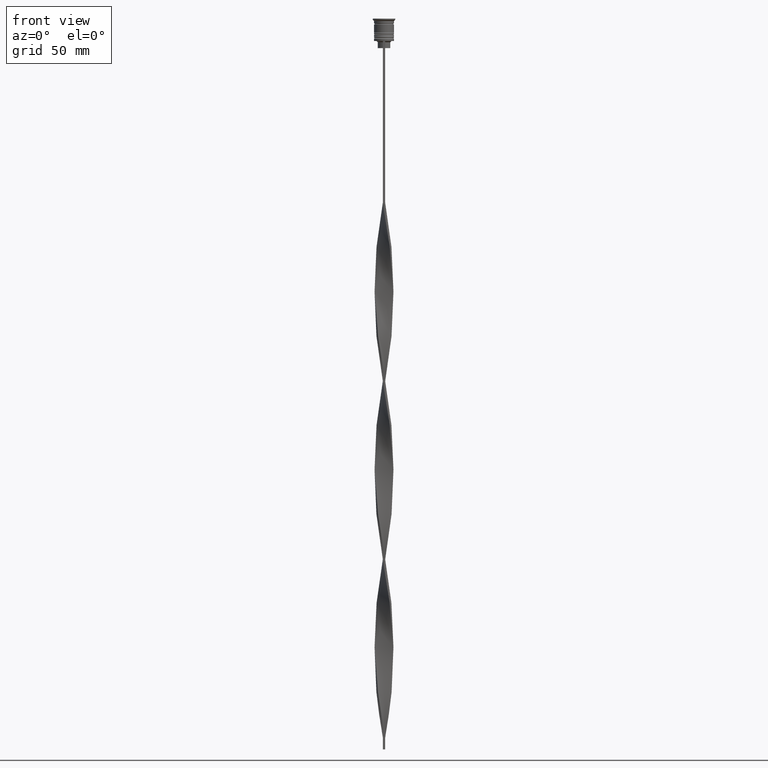
[diagram: clean part render]
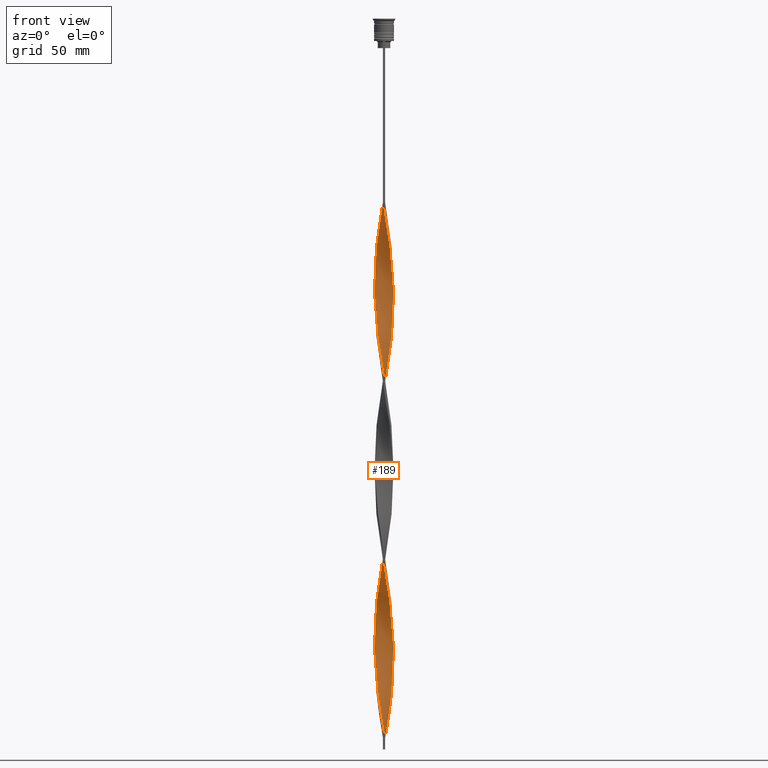
[diagram: same view with one face highlighted and labeled with its STEP entity id]
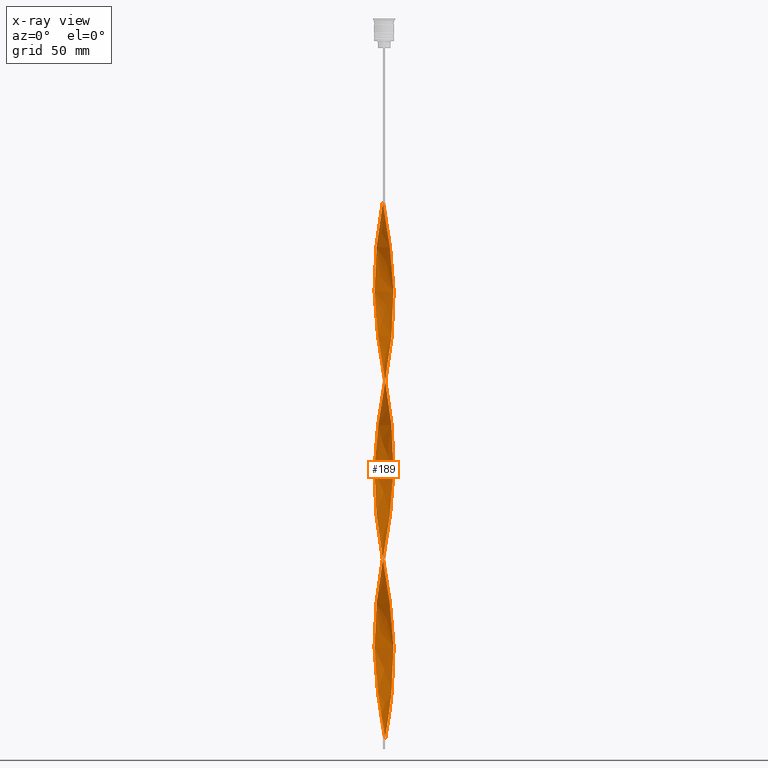
[diagram: x-ray of the same camera — body ghosted, the highlighted face saturated]
A machine part, front view. The second image highlights one B-rep face of the part: STEP entity #189.
The next image is the same camera in x-ray: the body ghosted, the highlighted face saturated — about 0% of this face is hidden behind the body in this view.
In plain terms, the highlighted face is a freeform B-spline surface patch.
Its self-contained STEP definition (entity closure, byte-faithful):
#2 = CARTESIAN_POINT ( 'NONE',  ( 0.4989459690400818159, 4.014053836277128973, -223.0394736842104635 ) ) ;
#7 = CARTESIAN_POINT ( 'NONE',  ( 2.851421105456868776, 2.849455681240740113, -137.6052631578947398 ) ) ;
#17 = CARTESIAN_POINT ( 'NONE',  ( 2.604254856879656188, -3.076988241839530236, -97.86842105263157521 ) ) ;
#18 = CARTESIAN_POINT ( 'NONE',  ( -3.281536428505396952, 2.341264331166398982, -248.8684210526315610 ) ) ;
#24 = EDGE_CURVE ( 'NONE', #1217, #3324, #1574, .T. ) ;
#31 = CARTESIAN_POINT ( 'NONE',  ( 3.622139992111327977, 1.769209393358442517, -280.6578947368420813 ) ) ;
#33 = CARTESIAN_POINT ( 'NONE',  ( 4.013708850648581183, -0.5017136063310728700, -115.7499999999999858 ) ) ;
#34 = CARTESIAN_POINT ( 'NONE',  ( -2.851421105456868332, 2.849455681240740557, -244.8947368421052886 ) ) ;
#42 = CARTESIAN_POINT ( 'NONE',  ( 0.8314494498030685632, 3.958568818774615750, -302.5131578947367643 ) ) ;
#50 = CARTESIAN_POINT ( 'NONE',  ( 1.471668575845527682, 3.767727018166428188, -147.5394736842105203 ) ) ;
#51 = CARTESIAN_POINT ( 'NONE',  ( -3.462245594293745565, -2.064668361939405727, -276.6842105263158373 ) ) ;
#61 = CARTESIAN_POINT ( 'NONE',  ( 4.041546438877108294, 0.1657638771030611746, -270.7236842105262440 ) ) ;
#71 = CARTESIAN_POINT ( 'NONE',  ( -1.775272850193347685, -3.634553836156354745, -290.5921052631578050 ) ) ;
#85 = CARTESIAN_POINT ( 'NONE',  ( 3.945048299290513150, -0.8286096283926643880, -264.7631578947368780 ) ) ;
#104 = CARTESIAN_POINT ( 'NONE',  ( 3.959141175778332133, 0.8287197540840011145, -274.6973684210525448 ) ) ;
#124 = CARTESIAN_POINT ( 'NONE',  ( -4.027627644762845627, -0.1679748646140053203, -113.7631578947368496 ) ) ;
#151 = CARTESIAN_POINT ( 'NONE',  ( 2.343526447751538289, -3.279921308307419903, -165.4210526315789593 ) ) ;
#165 = CARTESIAN_POINT ( 'NONE',  ( -2.071744419492578260, -3.474111446233964617, -219.0657894736841911 ) ) ;
#168 = CARTESIAN_POINT ( 'NONE',  ( -3.959141175778332133, 0.8287197540840015586, -107.8026315789473557 ) ) ;
#175 = CARTESIAN_POINT ( 'NONE',  ( 2.615308476010500982, 3.085731170380873412, -290.5921052631578050 ) ) ;
#176 = CARTESIAN_POINT ( 'NONE',  ( -0.1685505501969329079, -4.041431181225382474, -79.98684210526316463 ) ) ;
#182 = CARTESIAN_POINT ( 'NONE',  ( -3.959141175778333022, -0.8287197540840007814, -199.1973684210526017 ) ) ;
#185 = CARTESIAN_POINT ( 'NONE',  ( 3.087533734903233906, -2.613180192100608146, -171.3815789473684390 ) ) ;
#189 = ADVANCED_FACE ( 'NONE', ( #1071 ), #2811, .T. ) ;
#195 = CARTESIAN_POINT ( 'NONE',  ( -1.775272850193347685, -3.634553836156354745, -139.5921052631579187 ) ) ;
#197 = CARTESIAN_POINT ( 'NONE',  ( 2.859221371831710545, -2.861193531974598692, -250.8552631578947398 ) ) ;
#202 = CARTESIAN_POINT ( 'NONE',  ( -3.462245594293745565, -2.064668361939405727, -125.6842105263157805 ) ) ;
#219 = CARTESIAN_POINT ( 'NONE',  ( -3.075191833988901280, -2.606375871620971285, -129.6578947368421098 ) ) ;
#224 = CARTESIAN_POINT ( 'NONE',  ( 3.945048299290513150, -0.8286096283926643880, -264.7631578947368780 ) ) ;
#238 = CARTESIAN_POINT ( 'NONE',  ( -0.1651977094215750508, -4.027742508751256167, -149.5263157894736707 ) ) ;
#242 = CARTESIAN_POINT ( 'NONE',  ( 0.1651977094215744957, -4.027742508751256167, -232.9736842105263293 ) ) ;
#246 = CARTESIAN_POINT ( 'NONE',  ( -3.754858320186921894, -1.466642081532861797, -272.7105263157894797 ) ) ;
#249 = CARTESIAN_POINT ( 'NONE',  ( -0.8258892559684163359, 3.945618701404880913, -161.4473684210526301 ) ) ;
#255 = CARTESIAN_POINT ( 'NONE',  ( 2.062280596060474647, -3.463668393930408484, -93.89473684210526017 ) ) ;
#256 = CARTESIAN_POINT ( 'NONE',  ( 3.475539122107559109, -2.069348470232190262, -175.3552631578947398 ) ) ;
#263 = CARTESIAN_POINT ( 'NONE',  ( -3.075191833988901280, -2.606375871620971285, -280.6578947368420813 ) ) ;
#271 = CARTESIAN_POINT ( 'NONE',  ( -2.859221371831710545, 2.861193531974599580, -175.3552631578947398 ) ) ;
#281 = CARTESIAN_POINT ( 'NONE',  ( -1.771706497669051306, 3.620919232200196625, -85.94736842105263008 ) ) ;
#286 = CARTESIAN_POINT ( 'NONE',  ( -1.471668575845526350, 3.767727018166428632, -234.9605263157894228 ) ) ;
#291 = CARTESIAN_POINT ( 'NONE',  ( 3.768740862115096402, 1.469070316484696548, -127.6710526315789735 ) ) ;
#297 = CARTESIAN_POINT ( 'NONE',  ( 2.349288341927600499, -3.292782951704461336, -95.88157894736841058 ) ) ;
#298 = CARTESIAN_POINT ( 'NONE',  ( 3.945048299290513150, 0.8286096283926643880, -193.2368421052631504 ) ) ;
#308 = CARTESIAN_POINT ( 'NONE',  ( 1.464052696545049548, -3.755868701344493132, -89.92105263157894512 ) ) ;
#313 = CARTESIAN_POINT ( 'NONE',  ( 0.4989459690400814829, -4.014053836277128973, -83.96052631578946546 ) ) ;
#314 = CARTESIAN_POINT ( 'NONE',  ( 4.041546438877108294, -0.1657638771030640612, -187.2763157894736707 ) ) ;
#326 = CARTESIAN_POINT ( 'NONE',  ( 1.471668575845527682, 3.767727018166428188, -298.5394736842104635 ) ) ;
#335 = CARTESIAN_POINT ( 'NONE',  ( 3.633328892441399116, -1.777778512611468020, -107.8026315789473557 ) ) ;
#336 = CARTESIAN_POINT ( 'NONE',  ( -1.771706497669051306, 3.620919232200196625, -236.9473684210526301 ) ) ;
#350 = CARTESIAN_POINT ( 'NONE',  ( -2.343526447751540953, -3.279921308307418126, -217.0789473684210407 ) ) ;
#354 = CARTESIAN_POINT ( 'NONE',  ( 1.771706497669051972, 3.620919232200196625, -145.5526315789473699 ) ) ;
#355 = CARTESIAN_POINT ( 'NONE',  ( 3.633328892441399116, 1.777778512611467132, -199.1973684210526017 ) ) ;
#365 = CARTESIAN_POINT ( 'NONE',  ( -0.8314494498030688963, -3.958568818774615750, -227.0131578947368212 ) ) ;
#372 = CARTESIAN_POINT ( 'NONE',  ( -2.071744419492576039, 3.474111446233965506, -238.9342105263157805 ) ) ;
#382 = CARTESIAN_POINT ( 'NONE',  ( 3.768740862115096402, 1.469070316484696548, -278.6710526315789025 ) ) ;
#402 = CARTESIAN_POINT ( 'NONE',  ( -1.771706497669052194, -3.620919232200196181, -221.0526315789473983 ) ) ;
#404 = EDGE_CURVE ( 'NONE', #1416, #1217, #3451, .T. ) ;
#421 = CARTESIAN_POINT ( 'NONE',  ( -1.775272850193347685, -3.634553836156354745, -139.5921052631579187 ) ) ;
#439 = CARTESIAN_POINT ( 'NONE',  ( -3.291162296146090682, -2.351558211267345211, -127.6710526315789735 ) ) ;
#457 = CARTESIAN_POINT ( 'NONE',  ( -3.622139992111328866, -1.769209393358442073, -205.1578947368420813 ) ) ;
#462 = CARTESIAN_POINT ( 'NONE',  ( -1.771706497669051306, 3.620919232200196625, -85.94736842105263008 ) ) ;
#475 = CARTESIAN_POINT ( 'NONE',  ( 1.464052696545049548, -3.755868701344493132, -240.9210526315789309 ) ) ;
#478 = CARTESIAN_POINT ( 'NONE',  ( 4.013708850648581183, 0.5017136063310719818, -191.2499999999999432 ) ) ;
#488 = CARTESIAN_POINT ( 'NONE',  ( -2.604254856879656632, -3.076988241839529348, -133.6315789473684390 ) ) ;
#491 = CARTESIAN_POINT ( 'NONE',  ( 1.152832542896751189, -3.877183566532631520, -238.9342105263157805 ) ) ;
#494 = CARTESIAN_POINT ( 'NONE',  ( -2.851421105456868332, 2.849455681240740557, -93.89473684210526017 ) ) ;
#507 = CARTESIAN_POINT ( 'NONE',  ( -2.062280596060475091, -3.463668393930408040, -137.6052631578947398 ) ) ;
#512 = CARTESIAN_POINT ( 'NONE',  ( 3.633328892441399116, -1.777778512611468020, -258.8026315789473415 ) ) ;
#516 = CARTESIAN_POINT ( 'NONE',  ( -3.768740862115096402, 1.469070316484696770, -254.8289473684210407 ) ) ;
#529 = CARTESIAN_POINT ( 'NONE',  ( 2.343526447751538289, -3.279921308307419903, -165.4210526315789593 ) ) ;
#533 = CARTESIAN_POINT ( 'NONE',  ( 4.027627644762845627, -0.1679748646140058199, -268.7368421052631788 ) ) ;
#535 = CARTESIAN_POINT ( 'NONE',  ( -3.291162296146090682, -2.351558211267345211, -278.6710526315789025 ) ) ;
#538 = CARTESIAN_POINT ( 'NONE',  ( 3.945048299290513150, -0.8286096283926643880, -113.7631578947368496 ) ) ;
#545 = CARTESIAN_POINT ( 'NONE',  ( -1.464052696545050436, -3.755868701344492688, -141.5789473684210407 ) ) ;
#553 = CARTESIAN_POINT ( 'NONE',  ( -3.959141175778332133, 0.8287197540840015586, -258.8026315789473415 ) ) ;
#557 = CARTESIAN_POINT ( 'NONE',  ( 4.027627644762845627, -0.1679748646140058199, -117.7368421052631646 ) ) ;
#563 = CARTESIAN_POINT ( 'NONE',  ( 3.075191833988900836, -2.606375871620972173, -101.8421052631579045 ) ) ;
#579 = CARTESIAN_POINT ( 'NONE',  ( 3.291162296146090682, -2.351558211267345211, -103.8289473684210265 ) ) ;
#590 = CARTESIAN_POINT ( 'NONE',  ( -2.615308476010500982, 3.085731170380873412, -242.9078947368421098 ) ) ;
#598 = CARTESIAN_POINT ( 'NONE',  ( -3.876387747932445116, -1.155505650454255795, -270.7236842105262440 ) ) ;
#601 = CARTESIAN_POINT ( 'NONE',  ( 2.343526447751539177, 3.279921308307419459, -141.5789473684210407 ) ) ;
#609 = CARTESIAN_POINT ( 'NONE',  ( -1.151559012824296735, 3.863147918470522413, -232.9736842105263293 ) ) ;
#616 = DIRECTION ( 'NONE',  ( 0.000000000000000000, 1.000000000000000000, 0.000000000000000000 ) ) ;
#621 = CARTESIAN_POINT ( 'NONE',  ( 2.071744419492577371, 3.474111446233965061, -143.5657894736842195 ) ) ;
#625 = EDGE_CURVE ( 'NONE', #3670, #3324, #1105, .T. ) ;
#627 = CARTESIAN_POINT ( 'NONE',  ( 1.152832542896753409, 3.877183566532631520, -219.0657894736841911 ) ) ;
#638 = CARTESIAN_POINT ( 'NONE',  ( -1.151559012824299399, -3.863147918470521969, -225.0263157894736992 ) ) ;
#646 = CARTESIAN_POINT ( 'NONE',  ( -0.1651977094215738573, 4.027742508751257056, -157.4736842105263293 ) ) ;
#647 = CARTESIAN_POINT ( 'NONE',  ( 3.768740862115095513, -1.469070316484699212, -179.3289473684210691 ) ) ;
#661 = CARTESIAN_POINT ( 'NONE',  ( -1.151559012824296735, 3.863147918470522413, -81.97368421052631504 ) ) ;
#667 = CARTESIAN_POINT ( 'NONE',  ( -2.343526447751538733, 3.279921308307419903, -240.9210526315789309 ) ) ;
#678 = CARTESIAN_POINT ( 'NONE',  ( 0.8258892559684165580, -3.945618701404880024, -236.9473684210526301 ) ) ;
#693 = CARTESIAN_POINT ( 'NONE',  ( 3.633328892441398672, -1.777778512611468020, -258.8026315789473415 ) ) ;
#716 = CARTESIAN_POINT ( 'NONE',  ( 3.754858320186921894, -1.466642081532862241, -260.7894736842105203 ) ) ;
#722 = CARTESIAN_POINT ( 'NONE',  ( 2.343526447751539177, 3.279921308307419459, -292.5789473684210407 ) ) ;
#736 = CARTESIAN_POINT ( 'NONE',  ( -3.087533734903234350, 2.613180192100606813, -95.88157894736841058 ) ) ;
#750 = CARTESIAN_POINT ( 'NONE',  ( -4.013708850648581183, -0.5017136063310724259, -115.7500000000000000 ) ) ;
#755 = CARTESIAN_POINT ( 'NONE',  ( 2.851421105456868776, 2.849455681240740113, -288.6052631578947398 ) ) ;
#770 = CARTESIAN_POINT ( 'NONE',  ( -2.859221371831710101, 2.861193531974599580, -175.3552631578947398 ) ) ;
#773 = CARTESIAN_POINT ( 'NONE',  ( 0.1685505501969314646, -4.041431181225382474, -151.5131578947368496 ) ) ;
#786 = CARTESIAN_POINT ( 'NONE',  ( -1.151559012824296735, 3.863147918470522413, -81.97368421052631504 ) ) ;
#787 = CARTESIAN_POINT ( 'NONE',  ( -3.945048299290513150, 0.8286096283926659423, -189.2631578947368496 ) ) ;
#791 = CARTESIAN_POINT ( 'NONE',  ( 3.959141175778333022, -0.8287197540840020027, -183.3026315789473699 ) ) ;
#802 = CARTESIAN_POINT ( 'NONE',  ( -3.959141175778332133, 0.8287197540840016696, -107.8026315789473557 ) ) ;
#804 = CARTESIAN_POINT ( 'NONE',  ( -2.851421105456868776, -2.849455681240739668, -213.1052631578947398 ) ) ;
#807 = CARTESIAN_POINT ( 'NONE',  ( -0.1685505501969309927, 4.041431181225382474, -227.0131578947368212 ) ) ;
#820 = CARTESIAN_POINT ( 'NONE',  ( -1.471668575845526350, 3.767727018166428632, -83.96052631578946546 ) ) ;
#825 = CARTESIAN_POINT ( 'NONE',  ( 3.462245594293745121, -2.064668361939406616, -256.8157894736842195 ) ) ;
#830 = CARTESIAN_POINT ( 'NONE',  ( -3.475539122107559997, 2.069348470232189818, -250.8552631578947683 ) ) ;
#835 =( BOUNDED_CURVE ( )  B_SPLINE_CURVE ( 2, ( #3408, #2463, #3707, #313, #1542, #3726, #2772, #930, #255, #297, #17, #2733, #563, #1528, #1242, #335, #2162, #2799, #1486, #33, #2480, #2708, #3950, #3645, #863, #2095, #3968, #1202, #3366, #2814, #1886, #3743, #3117, #1586, #354, #50, #3424, #971, #1275, #2501, #646, #3853, #2305, #3591, #2652, #1392, #2944, #1692, #3552, #770, #2329, #1164, #1768, #2612, #2963, #2926, #787, #1725, #1078, #2001, #3871, #182, #3892, #3243, #457, #1440, #1121, #3221, #804, #2020, #2062, #165, #3262, #3574, #3927, #3307, #2344, #3009, #242, #2362, #1414, #491, #475, #1711, #2631, #1103, #2039, #197, #3607, #3281, #825, #512, #1749, #2991, #224, #1458, #533, #2672, #3630, #3910, #1143, #1473, #2687, #2389, #847, #1701, #755, #175, #722, #3504, #1938, #2556, #3801, #1403, #3565 ),
 .UNSPECIFIED., .F., .T. ) 
 B_SPLINE_CURVE_WITH_KNOTS ( ( 3, 2, 2, 2, 2, 2, 2, 2, 2, 2, 2, 2, 2, 2, 2, 2, 2, 2, 2, 2, 2, 2, 2, 2, 2, 2, 2, 2, 2, 2, 2, 2, 2, 2, 2, 2, 2, 2, 2, 2, 2, 2, 2, 2, 2, 2, 2, 2, 2, 2, 2, 2, 2, 2, 2, 2, 2, 3 ),
 ( 0.000000000000000000, 0.01315789473684210453, 0.02631578947368420907, 0.03947368421052631360, 0.05263157894736841813, 0.06578947368421052266, 0.07894736842105262720, 0.09210526315789473173, 0.1052631578947368363, 0.1184210526315789408, 0.1315789473684210453, 0.1447368421052631637, 0.1578947368421052544, 0.1710526315789473728, 0.1842105263157894635, 0.1973684210526315541, 0.2105263157894736725, 0.2236842105263157909, 0.2368421052631578816, 0.2500000000000000000, 0.2631578947368420907, 0.2763157894736842368, 0.2894736842105263275, 0.3026315789473684181, 0.3157894736842105088, 0.3289473684210526550, 0.3421052631578947456, 0.3552631578947368918, 0.3684210526315789269, 0.3815789473684210731, 0.3947368421052631082, 0.4078947368421052544, 0.4210526315789473450, 0.4342105263157895467, 0.4473684210526315819, 0.4605263157894736725, 0.4736842105263157632, 0.4868421052631579093, 0.5000000000000000000, 0.5131578947368421462, 0.5263157894736841813, 0.5394736842105263275, 0.5526315789473684736, 0.5657894736842105088, 0.5789473684210526550, 0.5921052631578946901, 0.6052631578947368363, 0.6184210526315789824, 0.6315789473684210176, 0.6447368421052631637, 0.6578947368421053099, 0.6710526315789473450, 0.6842105263157894912, 0.6973684210526315264, 0.7105263157894737835, 0.7236842105263158187, 0.7368421052631578538, 0.7500000000000000000 ),
 .UNSPECIFIED. ) 
 CURVE ( )  GEOMETRIC_REPRESENTATION_ITEM ( )  RATIONAL_B_SPLINE_CURVE ( ( 1.000000000000000000, 0.9965844930066698470, 1.000000000000000000, 0.9965844930066698470, 1.000000000000000000, 0.9965844930066698470, 1.000000000000000000, 0.9965844930066698470, 1.000000000000000000, 0.9965844930066698470, 1.000000000000000000, 0.9965844930066698470, 1.000000000000000000, 0.9965844930066698470, 1.000000000000000000, 0.9965844930066698470, 1.000000000000000000, 0.9965844930066698470, 1.000000000000000000, 0.9965844930066698470, 1.000000000000000000, 0.9965844930066698470, 1.000000000000000000, 0.9965844930066698470, 1.000000000000000000, 0.9965844930066698470, 1.000000000000000000, 0.9965844930066698470, 1.000000000000000000, 0.9965844930066698470, 1.000000000000000000, 0.9965844930066698470, 1.000000000000000000, 0.9965844930066698470, 1.000000000000000000, 0.9965844930066698470, 1.000000000000000000, 0.9965844930066698470, 1.000000000000000000, 0.9965844930066698470, 1.000000000000000000, 0.9965844930066698470, 1.000000000000000000, 0.9965844930066698470, 1.000000000000000000, 0.9965844930066698470, 1.000000000000000000, 0.9965844930066698470, 1.000000000000000000, 0.9965844930066698470, 1.000000000000000000, 0.9965844930066698470, 1.000000000000000000, 0.9965844930066698470, 1.000000000000000000, 0.9965844930066698470, 1.000000000000000000, 0.9965844930066698470, 1.000000000000000000, 0.9965844930066698470, 1.000000000000000000, 0.9965844930066698470, 1.000000000000000000, 0.9965844930066698470, 1.000000000000000000, 0.9965844930066698470, 1.000000000000000000, 0.9965844930066698470, 1.000000000000000000, 0.9965844930066698470, 1.000000000000000000, 0.9965844930066698470, 1.000000000000000000, 0.9965844930066698470, 1.000000000000000000, 0.9965844930066698470, 1.000000000000000000, 0.9965844930066698470, 1.000000000000000000, 0.9965844930066698470, 1.000000000000000000, 0.9965844930066698470, 1.000000000000000000, 0.9965844930066698470, 1.000000000000000000, 0.9965844930066698470, 1.000000000000000000, 0.9965844930066698470, 1.000000000000000000, 0.9965844930066698470, 1.000000000000000000, 0.9965844930066698470, 1.000000000000000000, 0.9965844930066698470, 1.000000000000000000, 0.9965844930066698470, 1.000000000000000000, 0.9965844930066698470, 1.000000000000000000, 0.9965844930066698470, 1.000000000000000000, 0.9965844930066698470, 1.000000000000000000, 0.9965844930066698470, 1.000000000000000000, 0.9965844930066698470, 1.000000000000000000, 0.9965844930066698470, 1.000000000000000000, 0.9965844930066698470, 1.000000000000000000, 0.9965844930066698470, 1.000000000000000000, 0.9965844930066698470, 1.000000000000000000 ) ) 
 REPRESENTATION_ITEM ( '' )  );
#836 = CARTESIAN_POINT ( 'NONE',  ( 2.859221371831710989, -2.861193531974598692, -99.85526315789472562 ) ) ;
#847 = CARTESIAN_POINT ( 'NONE',  ( 3.281536428505397396, 2.341264331166397206, -284.6315789473683822 ) ) ;
#854 = CARTESIAN_POINT ( 'NONE',  ( -3.633328892441398672, 1.777778512611468464, -183.3026315789473699 ) ) ;
#863 = CARTESIAN_POINT ( 'NONE',  ( 3.863941018946714934, 1.148895035284348332, -125.6842105263157805 ) ) ;
#871 = CARTESIAN_POINT ( 'NONE',  ( -0.8258892559684172241, -3.945618701404880024, -296.5526315789473983 ) ) ;
#874 = CARTESIAN_POINT ( 'NONE',  ( -0.5000000000000000000, 4.000000000000000000, -78.00000000000000000 ) ) ;
#875 = CARTESIAN_POINT ( 'NONE',  ( 2.349288341927600499, -3.292782951704461780, -95.88157894736841058 ) ) ;
#883 = CARTESIAN_POINT ( 'NONE',  ( -4.000343807327721102, 0.4972418155935317552, -260.7894736842105203 ) ) ;
#900 = CARTESIAN_POINT ( 'NONE',  ( -4.041546438877108294, -0.1657638771030589819, -195.2236842105263008 ) ) ;
#913 = CARTESIAN_POINT ( 'NONE',  ( -0.4989459690400829817, -4.014053836277128973, -298.5394736842104635 ) ) ;
#925 = CARTESIAN_POINT ( 'NONE',  ( -2.604254856879654412, 3.076988241839531568, -173.3684210526315610 ) ) ;
#930 = CARTESIAN_POINT ( 'NONE',  ( 1.775272850193347685, -3.634553836156354745, -91.90789473684209554 ) ) ;
#931 = CARTESIAN_POINT ( 'NONE',  ( 3.291162296146092014, 2.351558211267342990, -203.1710526315789593 ) ) ;
#946 = CARTESIAN_POINT ( 'NONE',  ( 1.152832542896750967, -3.877183566532631520, -238.9342105263157521 ) ) ;
#953 = CARTESIAN_POINT ( 'NONE',  ( -4.027627644762845627, -0.1679748646140053203, -264.7631578947368780 ) ) ;
#961 = CARTESIAN_POINT ( 'NONE',  ( 0.5000000000000002220, 1.333333333333333481, -304.5000000000000000 ) ) ;
#971 = CARTESIAN_POINT ( 'NONE',  ( 0.8314494498030685632, 3.958568818774615750, -151.5131578947368496 ) ) ;
#972 = CARTESIAN_POINT ( 'NONE',  ( 0.8258892559684176682, 3.945618701404880024, -221.0526315789473983 ) ) ;
#984 = CARTESIAN_POINT ( 'NONE',  ( -3.622139992111328866, -1.769209393358442073, -205.1578947368420813 ) ) ;
#1000 = CARTESIAN_POINT ( 'NONE',  ( 2.349288341927600499, -3.292782951704461780, -246.8815789473684674 ) ) ;
#1044 = CARTESIAN_POINT ( 'NONE',  ( 2.071744419492574707, -3.474111446233965950, -163.4342105263157805 ) ) ;
#1062 = CARTESIAN_POINT ( 'NONE',  ( -3.945048299290513150, -0.8286096283926639439, -117.7368421052631646 ) ) ;
#1071 = FACE_OUTER_BOUND ( 'NONE', #1225, .T. ) ;
#1078 = CARTESIAN_POINT ( 'NONE',  ( -4.027627644762845627, 0.1679748646140054313, -193.2368421052631504 ) ) ;
#1081 = CARTESIAN_POINT ( 'NONE',  ( -2.071744419492575595, 3.474111446233965506, -87.93421052631578050 ) ) ;
#1092 = ORIENTED_EDGE ( 'NONE', *, *, #404, .T. ) ;
#1103 = CARTESIAN_POINT ( 'NONE',  ( 2.349288341927600499, -3.292782951704461336, -246.8815789473684390 ) ) ;
#1105 = B_SPLINE_CURVE_WITH_KNOTS ( 'NONE', 3,
 ( #3733, #961, #3436, #3143 ),
 .UNSPECIFIED., .F., .F.,
 ( 4, 4 ),
 ( 0.000000000000000000, 1.000000000000000000 ),
 .UNSPECIFIED. ) ;
#1107 = CARTESIAN_POINT ( 'NONE',  ( 3.633328892441399116, 1.777778512611467132, -199.1973684210526017 ) ) ;
#1118 = CARTESIAN_POINT ( 'NONE',  ( -4.027627644762845627, -0.1679748646140053203, -113.7631578947368496 ) ) ;
#1121 = CARTESIAN_POINT ( 'NONE',  ( -3.281536428505399172, -2.341264331166395873, -209.1315789473684390 ) ) ;
#1126 = CARTESIAN_POINT ( 'NONE',  ( 3.754858320186922338, 1.466642081532860464, -197.2105263157894797 ) ) ;
#1139 = CARTESIAN_POINT ( 'NONE',  ( 1.151559012824296291, -3.863147918470523301, -157.4736842105263293 ) ) ;
#1143 = CARTESIAN_POINT ( 'NONE',  ( 3.863941018946714934, 1.148895035284348332, -276.6842105263158373 ) ) ;
#1151 = CARTESIAN_POINT ( 'NONE',  ( -3.462245594293744677, 2.064668361939407948, -181.3157894736842195 ) ) ;
#1158 = CARTESIAN_POINT ( 'NONE',  ( -2.615308476010500982, 3.085731170380873412, -91.90789473684209554 ) ) ;
#1164 = CARTESIAN_POINT ( 'NONE',  ( -3.291162296146088906, 2.351558211267347431, -179.3289473684210691 ) ) ;
#1170 = CARTESIAN_POINT ( 'NONE',  ( 0.1685505501969314646, -4.041431181225382474, -302.5131578947367643 ) ) ;
#1177 = CARTESIAN_POINT ( 'NONE',  ( 3.281536428505397396, 2.341264331166397206, -133.6315789473684390 ) ) ;
#1185 = CARTESIAN_POINT ( 'NONE',  ( -2.071744419492576039, 3.474111446233965506, -87.93421052631578050 ) ) ;
#1191 = CARTESIAN_POINT ( 'NONE',  ( 0.1651977094215772157, 4.027742508751256167, -225.0263157894736992 ) ) ;
#1196 = CARTESIAN_POINT ( 'NONE',  ( -3.959141175778333022, -0.8287197540840007814, -199.1973684210526017 ) ) ;
#1202 = CARTESIAN_POINT ( 'NONE',  ( 3.475539122107559553, 2.069348470232189374, -131.6447368421052602 ) ) ;
#1203 = CARTESIAN_POINT ( 'NONE',  ( -0.8258892559684172241, -3.945618701404880024, -145.5526315789473699 ) ) ;
#1209 = CARTESIAN_POINT ( 'NONE',  ( -2.604254856879656632, -3.076988241839529348, -284.6315789473683822 ) ) ;
#1214 = CARTESIAN_POINT ( 'NONE',  ( -0.5000000000000000000, -4.000000000000000000, -78.00000000000000000 ) ) ;
#1217 = VERTEX_POINT ( 'NONE', #874 ) ;
#1220 = CARTESIAN_POINT ( 'NONE',  ( 0.4989459690400818714, 4.014053836277128973, -223.0394736842104919 ) ) ;
#1225 = EDGE_LOOP ( 'NONE', ( #1092, #1412, #2555, #3246 ) ) ;
#1227 = CARTESIAN_POINT ( 'NONE',  ( -0.8314494498030671199, 3.958568818774615750, -230.9868421052631220 ) ) ;
#1234 = CARTESIAN_POINT ( 'NONE',  ( 1.151559012824297401, 3.863147918470522413, -149.5263157894736707 ) ) ;
#1242 = CARTESIAN_POINT ( 'NONE',  ( 3.462245594293745121, -2.064668361939406616, -105.8157894736842053 ) ) ;
#1243 = CARTESIAN_POINT ( 'NONE',  ( 4.000343807327721102, -0.4972418155935313666, -185.2894736842105203 ) ) ;
#1263 = CARTESIAN_POINT ( 'NONE',  ( -3.768740862115096402, 1.469070316484696770, -254.8289473684210407 ) ) ;
#1269 = CARTESIAN_POINT ( 'NONE',  ( -2.851421105456868776, -2.849455681240739668, -213.1052631578947398 ) ) ;
#1275 = CARTESIAN_POINT ( 'NONE',  ( 0.5000000000000005551, 4.000000000000000000, -153.5000000000000000 ) ) ;
#1276 = CARTESIAN_POINT ( 'NONE',  ( -2.604254856879656632, -3.076988241839529348, -284.6315789473683822 ) ) ;
#1287 = CARTESIAN_POINT ( 'NONE',  ( 3.863941018946714934, 1.148895035284348332, -276.6842105263158373 ) ) ;
#1312 = CARTESIAN_POINT ( 'NONE',  ( 4.000343807327721102, 0.4972418155935313666, -272.7105263157894797 ) ) ;
#1316 = CARTESIAN_POINT ( 'NONE',  ( 0.4999999999999994449, -4.000000000000000000, -304.5000000000000000 ) ) ;
#1330 = CARTESIAN_POINT ( 'NONE',  ( -1.471668575845526794, -3.767727018166428188, -223.0394736842104635 ) ) ;
#1349 = CARTESIAN_POINT ( 'NONE',  ( -2.062280596060475091, -3.463668393930408040, -137.6052631578947398 ) ) ;
#1376 = CARTESIAN_POINT ( 'NONE',  ( -3.475539122107559997, 2.069348470232189818, -99.85526315789472562 ) ) ;
#1392 = CARTESIAN_POINT ( 'NONE',  ( -1.775272850193346796, 3.634553836156355633, -167.4078947368420813 ) ) ;
#1395 = CARTESIAN_POINT ( 'NONE',  ( -4.000343807327721102, 0.4972418155935317552, -109.7894736842105203 ) ) ;
#1403 = CARTESIAN_POINT ( 'NONE',  ( 0.8314494498030685632, 3.958568818774615750, -302.5131578947368212 ) ) ;
#1404 = CARTESIAN_POINT ( 'NONE',  ( 2.062280596060474647, -3.463668393930408484, -93.89473684210526017 ) ) ;
#1412 = ORIENTED_EDGE ( 'NONE', *, *, #24, .T. ) ;
#1414 = CARTESIAN_POINT ( 'NONE',  ( 0.8258892559684165580, -3.945618701404880024, -236.9473684210526301 ) ) ;
#1416 = VERTEX_POINT ( 'NONE', #3507 ) ;
#1417 = CARTESIAN_POINT ( 'NONE',  ( 3.281536428505396064, -2.341264331166400314, -173.3684210526315610 ) ) ;
#1434 = CARTESIAN_POINT ( 'NONE',  ( 0.8314494498030657876, -3.958568818774615750, -155.4868421052631504 ) ) ;
#1440 = CARTESIAN_POINT ( 'NONE',  ( -3.475539122107559997, -2.069348470232188930, -207.1447368421052317 ) ) ;
#1443 = CARTESIAN_POINT ( 'NONE',  ( -1.152832542896752965, -3.877183566532631076, -143.5657894736842195 ) ) ;
#1453 = CARTESIAN_POINT ( 'NONE',  ( -4.013708850648581183, -0.5017136063310724259, -115.7499999999999858 ) ) ;
#1458 = CARTESIAN_POINT ( 'NONE',  ( 4.013708850648581183, -0.5017136063310728700, -266.7499999999999432 ) ) ;
#1460 = CARTESIAN_POINT ( 'NONE',  ( 0.4999999999999994449, -4.000000000000000000, -304.5000000000000000 ) ) ;
#1470 = CARTESIAN_POINT ( 'NONE',  ( -3.768740862115096402, 1.469070316484696770, -103.8289473684210407 ) ) ;
#1473 = CARTESIAN_POINT ( 'NONE',  ( 3.768740862115096402, 1.469070316484696548, -278.6710526315789025 ) ) ;
#1477 = CARTESIAN_POINT ( 'NONE',  ( -3.462245594293745565, -2.064668361939405727, -276.6842105263158373 ) ) ;
#1480 = CARTESIAN_POINT ( 'NONE',  ( -3.291162296146088906, 2.351558211267347431, -179.3289473684210691 ) ) ;
#1486 = CARTESIAN_POINT ( 'NONE',  ( 3.945048299290513150, -0.8286096283926643880, -113.7631578947368496 ) ) ;
#1497 = CARTESIAN_POINT ( 'NONE',  ( -2.859221371831710989, -2.861193531974598692, -282.6447368421052033 ) ) ;
#1501 = CARTESIAN_POINT ( 'NONE',  ( -4.027627644762845627, 0.1679748646140054313, -193.2368421052631504 ) ) ;
#1511 = CARTESIAN_POINT ( 'NONE',  ( -3.087533734903234350, 2.613180192100606813, -95.88157894736841058 ) ) ;
#1522 = CARTESIAN_POINT ( 'NONE',  ( 3.087533734903234350, 2.613180192100606813, -135.6184210526315610 ) ) ;
#1528 = CARTESIAN_POINT ( 'NONE',  ( 3.291162296146090682, -2.351558211267345211, -103.8289473684210407 ) ) ;
#1529 = CARTESIAN_POINT ( 'NONE',  ( 3.959141175778333022, -0.8287197540840021137, -183.3026315789473699 ) ) ;
#1537 = CARTESIAN_POINT ( 'NONE',  ( 2.615308476010501426, 3.085731170380873412, -139.5921052631579187 ) ) ;
#1542 = CARTESIAN_POINT ( 'NONE',  ( 0.8258892559684165580, -3.945618701404880024, -85.94736842105263008 ) ) ;
#1543 = CARTESIAN_POINT ( 'NONE',  ( -0.8258892559684172241, -3.945618701404880024, -296.5526315789473983 ) ) ;
#1560 = CARTESIAN_POINT ( 'NONE',  ( 0.5000000000000005551, 4.000000000000000000, -304.5000000000000000 ) ) ;
#1568 = CARTESIAN_POINT ( 'NONE',  ( 1.775272850193348129, 3.634553836156354745, -215.0921052631578902 ) ) ;
#1574 =( BOUNDED_CURVE ( )  B_SPLINE_CURVE ( 2, ( #2359, #2408, #786, #820, #281, #1185, #3047, #1158, #1799, #1511, #2709, #2669, #1779, #1470, #2734, #802, #3573, #2961, #1118, #1453, #1763, #3951, #3605, #3005, #2035, #2017, #219, #3646, #488, #3969, #507, #195, #545, #3906, #1203, #1723, #238, #2383, #3627, #1434, #1139, #3304, #2058, #2649, #529, #1744, #2078, #3321, #3022, #256, #2145, #647, #3426, #1529, #1243, #314, #1863, #3409, #298, #3391, #3665, #355, #2800, #931, #2445, #3727, #2119, #3444, #2163, #1568, #3745, #627, #972, #1220, #2207, #1844, #3990, #3082, #609, #3099, #336, #372, #667, #590, #34, #3367, #18, #1826, #1902, #1263, #3135, #1887, #883, #2481, #953, #2181, #3118, #2757, #1587, #2815, #51, #3066, #3708, #1603, #1276, #2833, #2502, #71, #2427, #3687, #1543, #913, #2774, #2464, #1316 ),
 .UNSPECIFIED., .F., .T. ) 
 B_SPLINE_CURVE_WITH_KNOTS ( ( 3, 2, 2, 2, 2, 2, 2, 2, 2, 2, 2, 2, 2, 2, 2, 2, 2, 2, 2, 2, 2, 2, 2, 2, 2, 2, 2, 2, 2, 2, 2, 2, 2, 2, 2, 2, 2, 2, 2, 2, 2, 2, 2, 2, 2, 2, 2, 2, 2, 2, 2, 2, 2, 2, 2, 2, 2, 3 ),
 ( 0.000000000000000000, 0.01315789473684210453, 0.02631578947368420907, 0.03947368421052631360, 0.05263157894736841813, 0.06578947368421052266, 0.07894736842105262720, 0.09210526315789473173, 0.1052631578947368363, 0.1184210526315789408, 0.1315789473684210453, 0.1447368421052631637, 0.1578947368421052544, 0.1710526315789473728, 0.1842105263157894635, 0.1973684210526315541, 0.2105263157894736725, 0.2236842105263157909, 0.2368421052631578816, 0.2500000000000000000, 0.2631578947368420907, 0.2763157894736842368, 0.2894736842105263275, 0.3026315789473684181, 0.3157894736842105088, 0.3289473684210526550, 0.3421052631578947456, 0.3552631578947368918, 0.3684210526315789269, 0.3815789473684210731, 0.3947368421052631082, 0.4078947368421052544, 0.4210526315789473450, 0.4342105263157895467, 0.4473684210526315819, 0.4605263157894736725, 0.4736842105263157632, 0.4868421052631579093, 0.5000000000000000000, 0.5131578947368421462, 0.5263157894736841813, 0.5394736842105263275, 0.5526315789473684736, 0.5657894736842105088, 0.5789473684210526550, 0.5921052631578946901, 0.6052631578947368363, 0.6184210526315789824, 0.6315789473684210176, 0.6447368421052631637, 0.6578947368421053099, 0.6710526315789473450, 0.6842105263157894912, 0.6973684210526315264, 0.7105263157894737835, 0.7236842105263158187, 0.7368421052631578538, 0.7500000000000000000 ),
 .UNSPECIFIED. ) 
 CURVE ( )  GEOMETRIC_REPRESENTATION_ITEM ( )  RATIONAL_B_SPLINE_CURVE ( ( 1.000000000000000000, 0.9965844930066698470, 1.000000000000000000, 0.9965844930066698470, 1.000000000000000000, 0.9965844930066698470, 1.000000000000000000, 0.9965844930066698470, 1.000000000000000000, 0.9965844930066698470, 1.000000000000000000, 0.9965844930066698470, 1.000000000000000000, 0.9965844930066698470, 1.000000000000000000, 0.9965844930066698470, 1.000000000000000000, 0.9965844930066698470, 1.000000000000000000, 0.9965844930066698470, 1.000000000000000000, 0.9965844930066698470, 1.000000000000000000, 0.9965844930066698470, 1.000000000000000000, 0.9965844930066698470, 1.000000000000000000, 0.9965844930066698470, 1.000000000000000000, 0.9965844930066698470, 1.000000000000000000, 0.9965844930066698470, 1.000000000000000000, 0.9965844930066698470, 1.000000000000000000, 0.9965844930066698470, 1.000000000000000000, 0.9965844930066698470, 1.000000000000000000, 0.9965844930066698470, 1.000000000000000000, 0.9965844930066698470, 1.000000000000000000, 0.9965844930066698470, 1.000000000000000000, 0.9965844930066698470, 1.000000000000000000, 0.9965844930066698470, 1.000000000000000000, 0.9965844930066698470, 1.000000000000000000, 0.9965844930066698470, 1.000000000000000000, 0.9965844930066698470, 1.000000000000000000, 0.9965844930066698470, 1.000000000000000000, 0.9965844930066698470, 1.000000000000000000, 0.9965844930066698470, 1.000000000000000000, 0.9965844930066698470, 1.000000000000000000, 0.9965844930066698470, 1.000000000000000000, 0.9965844930066698470, 1.000000000000000000, 0.9965844930066698470, 1.000000000000000000, 0.9965844930066698470, 1.000000000000000000, 0.9965844930066698470, 1.000000000000000000, 0.9965844930066698470, 1.000000000000000000, 0.9965844930066698470, 1.000000000000000000, 0.9965844930066698470, 1.000000000000000000, 0.9965844930066698470, 1.000000000000000000, 0.9965844930066698470, 1.000000000000000000, 0.9965844930066698470, 1.000000000000000000, 0.9965844930066698470, 1.000000000000000000, 0.9965844930066698470, 1.000000000000000000, 0.9965844930066698470, 1.000000000000000000, 0.9965844930066698470, 1.000000000000000000, 0.9965844930066698470, 1.000000000000000000, 0.9965844930066698470, 1.000000000000000000, 0.9965844930066698470, 1.000000000000000000, 0.9965844930066698470, 1.000000000000000000, 0.9965844930066698470, 1.000000000000000000, 0.9965844930066698470, 1.000000000000000000, 0.9965844930066698470, 1.000000000000000000, 0.9965844930066698470, 1.000000000000000000, 0.9965844930066698470, 1.000000000000000000, 0.9965844930066698470, 1.000000000000000000, 0.9965844930066698470, 1.000000000000000000 ) ) 
 REPRESENTATION_ITEM ( '' )  );
#1580 = CARTESIAN_POINT ( 'NONE',  ( -2.071744419492577816, -3.474111446233964617, -219.0657894736841627 ) ) ;
#1586 = CARTESIAN_POINT ( 'NONE',  ( 2.071744419492577816, 3.474111446233965061, -143.5657894736841911 ) ) ;
#1587 = CARTESIAN_POINT ( 'NONE',  ( -3.754858320186921894, -1.466642081532861797, -272.7105263157894797 ) ) ;
#1597 = CARTESIAN_POINT ( 'NONE',  ( 2.343526447751539177, 3.279921308307419459, -292.5789473684210407 ) ) ;
#1603 = CARTESIAN_POINT ( 'NONE',  ( -2.859221371831710545, -2.861193531974598692, -282.6447368421052033 ) ) ;
#1610 = CARTESIAN_POINT ( 'NONE',  ( -0.5000000000000000000, -4.000000000000000000, -78.00000000000000000 ) ) ;
#1614 = CARTESIAN_POINT ( 'NONE',  ( 0.4989459690400814273, -4.014053836277128973, -234.9605263157894228 ) ) ;
#1636 = CARTESIAN_POINT ( 'NONE',  ( -0.5000000000000000000, -4.000000000000000000, -228.9999999999999716 ) ) ;
#1655 = CARTESIAN_POINT ( 'NONE',  ( 2.615308476010500538, -3.085731170380873856, -167.4078947368420813 ) ) ;
#1675 = CARTESIAN_POINT ( 'NONE',  ( -3.863941018946714490, 1.148895035284349442, -105.8157894736842053 ) ) ;
#1692 = CARTESIAN_POINT ( 'NONE',  ( -2.349288341927599610, 3.292782951704462668, -171.3815789473684390 ) ) ;
#1696 = CARTESIAN_POINT ( 'NONE',  ( -3.633328892441398672, -1.777778512611467576, -123.6973684210526443 ) ) ;
#1701 = CARTESIAN_POINT ( 'NONE',  ( 3.087533734903234350, 2.613180192100606813, -286.6184210526315042 ) ) ;
#1711 = CARTESIAN_POINT ( 'NONE',  ( 1.775272850193347685, -3.634553836156354745, -242.9078947368421098 ) ) ;
#1714 = CARTESIAN_POINT ( 'NONE',  ( 4.041546438877107406, -0.1657638771030640612, -187.2763157894736707 ) ) ;
#1723 = CARTESIAN_POINT ( 'NONE',  ( -0.4989459690400829817, -4.014053836277128973, -147.5394736842105203 ) ) ;
#1725 = CARTESIAN_POINT ( 'NONE',  ( -4.013708850648581183, 0.5017136063310734251, -191.2499999999999716 ) ) ;
#1728 = CARTESIAN_POINT ( 'NONE',  ( -3.281536428505396952, 2.341264331166398982, -97.86842105263157521 ) ) ;
#1744 = CARTESIAN_POINT ( 'NONE',  ( 2.615308476010500538, -3.085731170380874300, -167.4078947368420813 ) ) ;
#1749 = CARTESIAN_POINT ( 'NONE',  ( 3.754858320186921894, -1.466642081532862241, -260.7894736842105203 ) ) ;
#1752 = CARTESIAN_POINT ( 'NONE',  ( -0.5000000000000000000, 4.000000000000000000, -228.9999999999999716 ) ) ;
#1763 = CARTESIAN_POINT ( 'NONE',  ( -3.945048299290513150, -0.8286096283926639439, -117.7368421052631646 ) ) ;
#1768 = CARTESIAN_POINT ( 'NONE',  ( -3.462245594293744677, 2.064668361939407948, -181.3157894736842195 ) ) ;
#1771 = CARTESIAN_POINT ( 'NONE',  ( 2.062280596060475979, 3.463668393930407596, -213.1052631578947398 ) ) ;
#1774 = CARTESIAN_POINT ( 'NONE',  ( 4.013708850648581183, -0.5017136063310728700, -115.7500000000000000 ) ) ;
#1779 = CARTESIAN_POINT ( 'NONE',  ( -3.622139992111327533, 1.769209393358443627, -101.8421052631579045 ) ) ;
#1787 = CARTESIAN_POINT ( 'NONE',  ( -4.027627644762845627, -0.1679748646140053203, -264.7631578947368780 ) ) ;
#1791 = CARTESIAN_POINT ( 'NONE',  ( 1.771706497669051972, 3.620919232200196625, -145.5526315789473699 ) ) ;
#1799 = CARTESIAN_POINT ( 'NONE',  ( -2.851421105456868332, 2.849455681240740557, -93.89473684210526017 ) ) ;
#1810 = CARTESIAN_POINT ( 'NONE',  ( -2.343526447751538733, 3.279921308307419903, -240.9210526315789309 ) ) ;
#1817 = CARTESIAN_POINT ( 'NONE',  ( -1.464052696545049548, 3.755868701344493132, -165.4210526315789593 ) ) ;
#1826 = CARTESIAN_POINT ( 'NONE',  ( -3.475539122107559553, 2.069348470232189374, -250.8552631578947398 ) ) ;
#1832 = CARTESIAN_POINT ( 'NONE',  ( -3.863941018946714490, 1.148895035284349442, -256.8157894736842195 ) ) ;
#1836 = CARTESIAN_POINT ( 'NONE',  ( 0.1685505501969342679, 4.041431181225382474, -155.4868421052631220 ) ) ;
#1844 = CARTESIAN_POINT ( 'NONE',  ( -0.1685505501969309927, 4.041431181225382474, -227.0131578947368212 ) ) ;
#1853 = CARTESIAN_POINT ( 'NONE',  ( 0.8258892559684165580, -3.945618701404880024, -85.94736842105263008 ) ) ;
#1863 = CARTESIAN_POINT ( 'NONE',  ( 4.027627644762845627, 0.1679748646140039048, -189.2631578947368496 ) ) ;
#1877 = CARTESIAN_POINT ( 'NONE',  ( 4.027627644762845627, -0.1679748646140058199, -268.7368421052631788 ) ) ;
#1886 = CARTESIAN_POINT ( 'NONE',  ( 2.851421105456868776, 2.849455681240740113, -137.6052631578947398 ) ) ;
#1887 = CARTESIAN_POINT ( 'NONE',  ( -3.959141175778332133, 0.8287197540840016696, -258.8026315789473415 ) ) ;
#1902 = CARTESIAN_POINT ( 'NONE',  ( -3.622139992111327533, 1.769209393358443627, -252.8421052631579187 ) ) ;
#1912 = CARTESIAN_POINT ( 'NONE',  ( 1.464052696545049548, -3.755868701344493132, -240.9210526315789309 ) ) ;
#1930 = VECTOR ( 'NONE', #616, 1000.000000000000000 ) ;
#1938 = CARTESIAN_POINT ( 'NONE',  ( 1.771706497669051972, 3.620919232200196625, -296.5526315789473983 ) ) ;
#1949 = CARTESIAN_POINT ( 'NONE',  ( 3.075191833988901724, 2.606375871620970841, -205.1578947368420813 ) ) ;
#1968 = CARTESIAN_POINT ( 'NONE',  ( -0.8258892559684172241, -3.945618701404880024, -145.5526315789473699 ) ) ;
#1984 = CARTESIAN_POINT ( 'NONE',  ( 0.4999999999999994449, -4.000000000000000000, -153.5000000000000000 ) ) ;
#2001 = CARTESIAN_POINT ( 'NONE',  ( -4.041546438877109182, -0.1657638771030590097, -195.2236842105263008 ) ) ;
#2006 = CARTESIAN_POINT ( 'NONE',  ( 3.475539122107559553, -2.069348470232190706, -175.3552631578947398 ) ) ;
#2017 = CARTESIAN_POINT ( 'NONE',  ( -3.291162296146090682, -2.351558211267345211, -127.6710526315789593 ) ) ;
#2020 = CARTESIAN_POINT ( 'NONE',  ( -2.615308476010501426, -3.085731170380873412, -215.0921052631578902 ) ) ;
#2024 = CARTESIAN_POINT ( 'NONE',  ( 3.291162296146092014, 2.351558211267342990, -203.1710526315789309 ) ) ;
#2035 = CARTESIAN_POINT ( 'NONE',  ( -3.462245594293745565, -2.064668361939405727, -125.6842105263157805 ) ) ;
#2039 = CARTESIAN_POINT ( 'NONE',  ( 2.604254856879656188, -3.076988241839530236, -248.8684210526315610 ) ) ;
#2042 = CARTESIAN_POINT ( 'NONE',  ( -1.464052696545050436, -3.755868701344492688, -292.5789473684210407 ) ) ;
#2051 = CARTESIAN_POINT ( 'NONE',  ( 0.5000000000000005551, 4.000000000000000000, -304.5000000000000000 ) ) ;
#2058 = CARTESIAN_POINT ( 'NONE',  ( 1.771706497669051084, -3.620919232200197069, -161.4473684210526301 ) ) ;
#2062 = CARTESIAN_POINT ( 'NONE',  ( -2.343526447751540953, -3.279921308307418126, -217.0789473684210407 ) ) ;
#2066 = CARTESIAN_POINT ( 'NONE',  ( -3.945048299290513150, -0.8286096283926639439, -268.7368421052631788 ) ) ;
#2069 = CARTESIAN_POINT ( 'NONE',  ( -1.152832542896750079, 3.877183566532631964, -163.4342105263157805 ) ) ;
#2078 = CARTESIAN_POINT ( 'NONE',  ( 2.851421105456868332, -2.849455681240740557, -169.3947368421052602 ) ) ;
#2091 = CARTESIAN_POINT ( 'NONE',  ( -4.013708850648581183, 0.5017136063310734251, -191.2499999999999432 ) ) ;
#2095 = CARTESIAN_POINT ( 'NONE',  ( 3.768740862115096402, 1.469070316484696548, -127.6710526315789593 ) ) ;
#2107 = CARTESIAN_POINT ( 'NONE',  ( -1.771706497669051306, 3.620919232200196625, -236.9473684210526301 ) ) ;
#2111 = CARTESIAN_POINT ( 'NONE',  ( 3.959141175778332133, 0.8287197540840011145, -123.6973684210526443 ) ) ;
#2119 = CARTESIAN_POINT ( 'NONE',  ( 2.604254856879658409, 3.076988241839528015, -209.1315789473684390 ) ) ;
#2130 = CARTESIAN_POINT ( 'NONE',  ( -4.041546438877107406, 0.1657638771030618408, -262.7763157894735855 ) ) ;
#2138 = CARTESIAN_POINT ( 'NONE',  ( -3.863941018946714490, -1.148895035284349442, -201.1842105263158089 ) ) ;
#2145 = CARTESIAN_POINT ( 'NONE',  ( 3.622139992111327533, -1.769209393358443627, -177.3421052631579187 ) ) ;
#2155 = CARTESIAN_POINT ( 'NONE',  ( 4.041546438877108294, 0.1657638771030611746, -119.7236842105263150 ) ) ;
#2162 = CARTESIAN_POINT ( 'NONE',  ( 3.754858320186921894, -1.466642081532862241, -109.7894736842105203 ) ) ;
#2163 = CARTESIAN_POINT ( 'NONE',  ( 2.062280596060475979, 3.463668393930407596, -213.1052631578947398 ) ) ;
#2172 = CARTESIAN_POINT ( 'NONE',  ( 2.615308476010501426, 3.085731170380873412, -290.5921052631577481 ) ) ;
#2181 = CARTESIAN_POINT ( 'NONE',  ( -4.013708850648581183, -0.5017136063310724259, -266.7499999999999432 ) ) ;
#2197 = CARTESIAN_POINT ( 'NONE',  ( 2.071744419492577371, 3.474111446233965061, -294.5657894736841627 ) ) ;
#2207 = CARTESIAN_POINT ( 'NONE',  ( 0.1651977094215772157, 4.027742508751256167, -225.0263157894736992 ) ) ;
#2217 = CARTESIAN_POINT ( 'NONE',  ( -0.1685505501969329079, -4.041431181225382474, -230.9868421052631220 ) ) ;
#2233 = CARTESIAN_POINT ( 'NONE',  ( 1.775272850193347685, -3.634553836156354745, -242.9078947368421098 ) ) ;
#2273 = CARTESIAN_POINT ( 'NONE',  ( 2.604254856879658409, 3.076988241839528015, -209.1315789473684390 ) ) ;
#2290 = CARTESIAN_POINT ( 'NONE',  ( -3.075191833988901280, -2.606375871620971285, -129.6578947368421098 ) ) ;
#2305 = CARTESIAN_POINT ( 'NONE',  ( -0.8258892559684163359, 3.945618701404880913, -161.4473684210526301 ) ) ;
#2308 = CARTESIAN_POINT ( 'NONE',  ( -0.4989459690400829261, -4.014053836277128973, -147.5394736842105203 ) ) ;
#2329 = CARTESIAN_POINT ( 'NONE',  ( -3.075191833988900836, 2.606375871620972173, -177.3421052631579187 ) ) ;
#2333 = CARTESIAN_POINT ( 'NONE',  ( -4.041546438877107406, 0.1657638771030618408, -111.7763157894736850 ) ) ;
#2344 = CARTESIAN_POINT ( 'NONE',  ( -0.5000000000000000000, -4.000000000000000000, -228.9999999999999716 ) ) ;
#2347 = CARTESIAN_POINT ( 'NONE',  ( 3.462245594293745121, 2.064668361939406616, -201.1842105263158089 ) ) ;
#2359 = CARTESIAN_POINT ( 'NONE',  ( -0.5000000000000000000, 4.000000000000000000, -78.00000000000000000 ) ) ;
#2362 = CARTESIAN_POINT ( 'NONE',  ( 0.4989459690400814829, -4.014053836277128973, -234.9605263157894228 ) ) ;
#2365 = CARTESIAN_POINT ( 'NONE',  ( -3.633328892441398672, -1.777778512611467576, -274.6973684210525448 ) ) ;
#2371 = CARTESIAN_POINT ( 'NONE',  ( 3.633328892441398672, -1.777778512611468020, -107.8026315789473557 ) ) ;
#2383 = CARTESIAN_POINT ( 'NONE',  ( 0.1685505501969314646, -4.041431181225382474, -151.5131578947368496 ) ) ;
#2389 = CARTESIAN_POINT ( 'NONE',  ( 3.475539122107559553, 2.069348470232189374, -282.6447368421052033 ) ) ;
#2399 = CARTESIAN_POINT ( 'NONE',  ( -3.876387747932443784, 1.155505650454258459, -187.2763157894736707 ) ) ;
#2408 = CARTESIAN_POINT ( 'NONE',  ( -0.8314494498030671199, 3.958568818774615750, -79.98684210526316463 ) ) ;
#2415 = CARTESIAN_POINT ( 'NONE',  ( -3.087533734903234350, 2.613180192100606813, -246.8815789473684674 ) ) ;
#2419 = CARTESIAN_POINT ( 'NONE',  ( 3.622139992111327977, 1.769209393358442517, -129.6578947368421098 ) ) ;
#2427 = CARTESIAN_POINT ( 'NONE',  ( -1.464052696545050436, -3.755868701344492688, -292.5789473684210407 ) ) ;
#2438 = CARTESIAN_POINT ( 'NONE',  ( 0.8314494498030685632, 3.958568818774615750, -151.5131578947368496 ) ) ;
#2445 = CARTESIAN_POINT ( 'NONE',  ( 3.075191833988901724, 2.606375871620970841, -205.1578947368420813 ) ) ;
#2459 = CARTESIAN_POINT ( 'NONE',  ( 0.5000000000000005551, 4.000000000000000000, -153.5000000000000000 ) ) ;
#2463 = CARTESIAN_POINT ( 'NONE',  ( -0.1685505501969328801, -4.041431181225382474, -79.98684210526316463 ) ) ;
#2464 = CARTESIAN_POINT ( 'NONE',  ( 0.1685505501969314646, -4.041431181225382474, -302.5131578947368212 ) ) ;
#2475 = CARTESIAN_POINT ( 'NONE',  ( 0.1651977094215744957, -4.027742508751256167, -232.9736842105263293 ) ) ;
#2480 = CARTESIAN_POINT ( 'NONE',  ( 4.027627644762845627, -0.1679748646140058199, -117.7368421052631646 ) ) ;
#2481 = CARTESIAN_POINT ( 'NONE',  ( -4.041546438877108294, 0.1657638771030618130, -262.7763157894736423 ) ) ;
#2494 = CARTESIAN_POINT ( 'NONE',  ( -3.087533734903235683, -2.613180192100605037, -211.1184210526315326 ) ) ;
#2501 = CARTESIAN_POINT ( 'NONE',  ( 0.1685505501969342401, 4.041431181225382474, -155.4868421052631504 ) ) ;
#2502 = CARTESIAN_POINT ( 'NONE',  ( -2.062280596060475091, -3.463668393930408040, -288.6052631578947398 ) ) ;
#2515 = CARTESIAN_POINT ( 'NONE',  ( -3.768740862115096846, -1.469070316484694327, -203.1710526315789309 ) ) ;
#2552 = CARTESIAN_POINT ( 'NONE',  ( 2.851421105456868776, 2.849455681240740113, -288.6052631578947398 ) ) ;
#2555 = ORIENTED_EDGE ( 'NONE', *, *, #625, .F. ) ;
#2556 = CARTESIAN_POINT ( 'NONE',  ( 1.471668575845527682, 3.767727018166428188, -298.5394736842104635 ) ) ;
#2573 = CARTESIAN_POINT ( 'NONE',  ( -2.859221371831710989, -2.861193531974598692, -131.6447368421052602 ) ) ;
#2598 = CARTESIAN_POINT ( 'NONE',  ( -3.768740862115096402, 1.469070316484696770, -103.8289473684210265 ) ) ;
#2612 = CARTESIAN_POINT ( 'NONE',  ( -3.633328892441399116, 1.777778512611468464, -183.3026315789473699 ) ) ;
#2615 = CARTESIAN_POINT ( 'NONE',  ( -2.349288341927600499, -3.292782951704461780, -135.6184210526315610 ) ) ;
#2625 = CARTESIAN_POINT ( 'NONE',  ( 3.876387747932444228, -1.155505650454256239, -111.7763157894736850 ) ) ;
#2631 = CARTESIAN_POINT ( 'NONE',  ( 2.062280596060474647, -3.463668393930408484, -244.8947368421052886 ) ) ;
#2633 = CARTESIAN_POINT ( 'NONE',  ( 3.945048299290513150, 0.8286096283926643880, -193.2368421052631504 ) ) ;
#2649 = CARTESIAN_POINT ( 'NONE',  ( 2.071744419492575151, -3.474111446233965950, -163.4342105263157805 ) ) ;
#2652 = CARTESIAN_POINT ( 'NONE',  ( -1.464052696545049548, 3.755868701344493132, -165.4210526315789593 ) ) ;
#2655 = CARTESIAN_POINT ( 'NONE',  ( 0.8314494498030657876, -3.958568818774615750, -155.4868421052631220 ) ) ;
#2669 = CARTESIAN_POINT ( 'NONE',  ( -3.475539122107559553, 2.069348470232189374, -99.85526315789472562 ) ) ;
#2672 = CARTESIAN_POINT ( 'NONE',  ( 4.041546438877109182, 0.1657638771030611746, -270.7236842105263008 ) ) ;
#2687 = CARTESIAN_POINT ( 'NONE',  ( 3.622139992111327977, 1.769209393358442517, -280.6578947368420813 ) ) ;
#2695 = CARTESIAN_POINT ( 'NONE',  ( -0.1651977094215738573, 4.027742508751257056, -157.4736842105263293 ) ) ;
#2708 = CARTESIAN_POINT ( 'NONE',  ( 4.041546438877109182, 0.1657638771030611746, -119.7236842105263150 ) ) ;
#2709 = CARTESIAN_POINT ( 'NONE',  ( -3.281536428505396952, 2.341264331166398982, -97.86842105263157521 ) ) ;
#2718 = CARTESIAN_POINT ( 'NONE',  ( 0.8258892559684176682, 3.945618701404880024, -221.0526315789473983 ) ) ;
#2724 = CARTESIAN_POINT ( 'NONE',  ( -4.000343807327721102, -0.4972418155935300343, -197.2105263157894797 ) ) ;
#2733 = CARTESIAN_POINT ( 'NONE',  ( 2.859221371831710545, -2.861193531974598692, -99.85526315789472562 ) ) ;
#2734 = CARTESIAN_POINT ( 'NONE',  ( -3.863941018946714490, 1.148895035284349442, -105.8157894736842053 ) ) ;
#2741 = CARTESIAN_POINT ( 'NONE',  ( -2.851421105456868332, 2.849455681240740557, -244.8947368421052886 ) ) ;
#2746 = CARTESIAN_POINT ( 'NONE',  ( 1.152832542896750967, -3.877183566532631520, -87.93421052631578050 ) ) ;
#2757 = CARTESIAN_POINT ( 'NONE',  ( -3.876387747932445116, -1.155505650454255573, -270.7236842105263008 ) ) ;
#2763 = CARTESIAN_POINT ( 'NONE',  ( 2.349288341927602719, 3.292782951704460892, -211.1184210526315326 ) ) ;
#2766 = CARTESIAN_POINT ( 'NONE',  ( 4.000343807327721102, 0.4972418155935313666, -121.7105263157894797 ) ) ;
#2772 = CARTESIAN_POINT ( 'NONE',  ( 1.464052696545049548, -3.755868701344493132, -89.92105263157894512 ) ) ;
#2774 = CARTESIAN_POINT ( 'NONE',  ( -0.1651977094215750508, -4.027742508751256167, -300.5263157894736992 ) ) ;
#2793 = CARTESIAN_POINT ( 'NONE',  ( -0.8314494498030671199, 3.958568818774615750, -79.98684210526316463 ) ) ;
#2799 = CARTESIAN_POINT ( 'NONE',  ( 3.876387747932444228, -1.155505650454256017, -111.7763157894736850 ) ) ;
#2800 = CARTESIAN_POINT ( 'NONE',  ( 3.462245594293745121, 2.064668361939406616, -201.1842105263158089 ) ) ;
#2810 = CARTESIAN_POINT ( 'NONE',  ( 4.013708850648581183, -0.5017136063310728700, -266.7499999999999432 ) ) ;
#2811 =( BOUNDED_SURFACE ( )  B_SPLINE_SURFACE ( 1, 2, ( 
 ( #1214, #176, #3077, #3036, #1853, #2746, #308, #3333, #1404, #875, #3980, #836, #3313, #579, #3657, #2371, #3939, #2625, #538, #1774, #557, #2155, #2766, #2111, #3016, #291, #2419, #3383, #1177, #1522, #7, #1537, #601, #621, #1791, #3918, #1234, #2438, #2459, #1836, #2695, #3353, #249, #2069, #1817, #3961, #3703, #3060, #925, #271, #3677, #1480, #1151, #854, #3617, #2399, #3638, #2091, #1501, #900, #2724, #1196, #2138, #2515, #984, #3454, #3165, #2494, #1269, #3720, #350, #1580, #402, #1330, #638, #365, #1636, #2217, #2475, #1614, #678, #946, #1912, #2233, #2867, #1000, #3472, #3758, #2848, #3495, #3146, #693, #716, #2824, #85, #2810, #1877, #61, #1312, #104, #1287, #382, #31, #3775, #3130, #3736, #2552, #2172, #1597, #2197, #3794, #326, #3113, #42, #1560 ),
 ( #3439, #2793, #661, #2965, #462, #1081, #3265, #2930, #494, #736, #1728, #1376, #3519, #2598, #1675, #168, #1395, #2333, #124, #750, #1062, #3181, #2947, #1696, #202, #439, #2290, #2573, #2910, #2615, #1349, #421, #3856, #1443, #1968, #2308, #3556, #773, #1984, #2655, #3537, #3820, #3579, #1044, #151, #1655, #3836, #185, #1417, #2006, #3595, #3225, #3247, #791, #3894, #1714, #3201, #478, #2633, #3876, #1126, #1107, #2347, #2024, #1949, #2889, #2273, #2763, #1771, #3012, #3283, #3957, #2718, #2, #1191, #807, #1752, #1227, #3030, #286, #2107, #3610, #1810, #3913, #2741, #2415, #3329, #830, #3349, #516, #1832, #553, #3652, #2130, #1787, #3375, #2066, #598, #246, #2365, #1477, #535, #263, #1497, #1209, #2993, #3633, #3931, #2042, #3055, #871, #3073, #3309, #1170, #1460 ) ),
 .UNSPECIFIED., .F., .F., .F. ) 
 B_SPLINE_SURFACE_WITH_KNOTS ( ( 2, 2 ),
 ( 3, 2, 2, 2, 2, 2, 2, 2, 2, 2, 2, 2, 2, 2, 2, 2, 2, 2, 2, 2, 2, 2, 2, 2, 2, 2, 2, 2, 2, 2, 2, 2, 2, 2, 2, 2, 2, 2, 2, 2, 2, 2, 2, 2, 2, 2, 2, 2, 2, 2, 2, 2, 2, 2, 2, 2, 2, 3 ),
 ( 0.000000000000000000, 1.000000000000000000 ),
 ( 0.000000000000000000, 0.01315789473684210453, 0.02631578947368420907, 0.03947368421052631360, 0.05263157894736841813, 0.06578947368421052266, 0.07894736842105262720, 0.09210526315789473173, 0.1052631578947368363, 0.1184210526315789408, 0.1315789473684210453, 0.1447368421052631637, 0.1578947368421052544, 0.1710526315789473728, 0.1842105263157894635, 0.1973684210526315819, 0.2105263157894736725, 0.2236842105263157909, 0.2368421052631578816, 0.2500000000000000000, 0.2631578947368420907, 0.2763157894736842368, 0.2894736842105263275, 0.3026315789473684181, 0.3157894736842105088, 0.3289473684210526550, 0.3421052631578947456, 0.3552631578947368363, 0.3684210526315789269, 0.3815789473684210731, 0.3947368421052631637, 0.4078947368421052544, 0.4210526315789473450, 0.4342105263157894912, 0.4473684210526315819, 0.4605263157894736725, 0.4736842105263157632, 0.4868421052631579093, 0.5000000000000000000, 0.5131578947368421462, 0.5263157894736841813, 0.5394736842105263275, 0.5526315789473684736, 0.5657894736842105088, 0.5789473684210526550, 0.5921052631578946901, 0.6052631578947368363, 0.6184210526315789824, 0.6315789473684210176, 0.6447368421052631637, 0.6578947368421053099, 0.6710526315789473450, 0.6842105263157894912, 0.6973684210526315264, 0.7105263157894736725, 0.7236842105263158187, 0.7368421052631578538, 0.7500000000000000000 ),
 .UNSPECIFIED. ) 
 GEOMETRIC_REPRESENTATION_ITEM ( )  RATIONAL_B_SPLINE_SURFACE ( (
 ( 1.000000000000000000, 0.9965844930066698470, 1.000000000000000000, 0.9965844930066698470, 1.000000000000000000, 0.9965844930066698470, 1.000000000000000000, 0.9965844930066698470, 1.000000000000000000, 0.9965844930066698470, 1.000000000000000000, 0.9965844930066698470, 1.000000000000000000, 0.9965844930066698470, 1.000000000000000000, 0.9965844930066698470, 1.000000000000000000, 0.9965844930066698470, 1.000000000000000000, 0.9965844930066698470, 1.000000000000000000, 0.9965844930066698470, 1.000000000000000000, 0.9965844930066698470, 1.000000000000000000, 0.9965844930066698470, 1.000000000000000000, 0.9965844930066698470, 1.000000000000000000, 0.9965844930066698470, 1.000000000000000000, 0.9965844930066698470, 1.000000000000000000, 0.9965844930066698470, 1.000000000000000000, 0.9965844930066698470, 1.000000000000000000, 0.9965844930066698470, 1.000000000000000000, 0.9965844930066698470, 1.000000000000000000, 0.9965844930066698470, 1.000000000000000000, 0.9965844930066698470, 1.000000000000000000, 0.9965844930066698470, 1.000000000000000000, 0.9965844930066698470, 1.000000000000000000, 0.9965844930066698470, 1.000000000000000000, 0.9965844930066698470, 1.000000000000000000, 0.9965844930066698470, 1.000000000000000000, 0.9965844930066698470, 1.000000000000000000, 0.9965844930066698470, 1.000000000000000000, 0.9965844930066698470, 1.000000000000000000, 0.9965844930066698470, 1.000000000000000000, 0.9965844930066698470, 1.000000000000000000, 0.9965844930066698470, 1.000000000000000000, 0.9965844930066698470, 1.000000000000000000, 0.9965844930066698470, 1.000000000000000000, 0.9965844930066698470, 1.000000000000000000, 0.9965844930066698470, 1.000000000000000000, 0.9965844930066698470, 1.000000000000000000, 0.9965844930066698470, 1.000000000000000000, 0.9965844930066698470, 1.000000000000000000, 0.9965844930066698470, 1.000000000000000000, 0.9965844930066698470, 1.000000000000000000, 0.9965844930066698470, 1.000000000000000000, 0.9965844930066698470, 1.000000000000000000, 0.9965844930066698470, 1.000000000000000000, 0.9965844930066698470, 1.000000000000000000, 0.9965844930066698470, 1.000000000000000000, 0.9965844930066698470, 1.000000000000000000, 0.9965844930066698470, 1.000000000000000000, 0.9965844930066698470, 1.000000000000000000, 0.9965844930066698470, 1.000000000000000000, 0.9965844930066698470, 1.000000000000000000, 0.9965844930066698470, 1.000000000000000000, 0.9965844930066698470, 1.000000000000000000, 0.9965844930066698470, 1.000000000000000000, 0.9965844930066698470, 1.000000000000000000, 0.9965844930066698470, 1.000000000000000000),
 ( 1.000000000000000000, 0.9965844930066698470, 1.000000000000000000, 0.9965844930066698470, 1.000000000000000000, 0.9965844930066698470, 1.000000000000000000, 0.9965844930066698470, 1.000000000000000000, 0.9965844930066698470, 1.000000000000000000, 0.9965844930066698470, 1.000000000000000000, 0.9965844930066698470, 1.000000000000000000, 0.9965844930066698470, 1.000000000000000000, 0.9965844930066698470, 1.000000000000000000, 0.9965844930066698470, 1.000000000000000000, 0.9965844930066698470, 1.000000000000000000, 0.9965844930066698470, 1.000000000000000000, 0.9965844930066698470, 1.000000000000000000, 0.9965844930066698470, 1.000000000000000000, 0.9965844930066698470, 1.000000000000000000, 0.9965844930066698470, 1.000000000000000000, 0.9965844930066698470, 1.000000000000000000, 0.9965844930066698470, 1.000000000000000000, 0.9965844930066698470, 1.000000000000000000, 0.9965844930066698470, 1.000000000000000000, 0.9965844930066698470, 1.000000000000000000, 0.9965844930066698470, 1.000000000000000000, 0.9965844930066698470, 1.000000000000000000, 0.9965844930066698470, 1.000000000000000000, 0.9965844930066698470, 1.000000000000000000, 0.9965844930066698470, 1.000000000000000000, 0.9965844930066698470, 1.000000000000000000, 0.9965844930066698470, 1.000000000000000000, 0.9965844930066698470, 1.000000000000000000, 0.9965844930066698470, 1.000000000000000000, 0.9965844930066698470, 1.000000000000000000, 0.9965844930066698470, 1.000000000000000000, 0.9965844930066698470, 1.000000000000000000, 0.9965844930066698470, 1.000000000000000000, 0.9965844930066698470, 1.000000000000000000, 0.9965844930066698470, 1.000000000000000000, 0.9965844930066698470, 1.000000000000000000, 0.9965844930066698470, 1.000000000000000000, 0.9965844930066698470, 1.000000000000000000, 0.9965844930066698470, 1.000000000000000000, 0.9965844930066698470, 1.000000000000000000, 0.9965844930066698470, 1.000000000000000000, 0.9965844930066698470, 1.000000000000000000, 0.9965844930066698470, 1.000000000000000000, 0.9965844930066698470, 1.000000000000000000, 0.9965844930066698470, 1.000000000000000000, 0.9965844930066698470, 1.000000000000000000, 0.9965844930066698470, 1.000000000000000000, 0.9965844930066698470, 1.000000000000000000, 0.9965844930066698470, 1.000000000000000000, 0.9965844930066698470, 1.000000000000000000, 0.9965844930066698470, 1.000000000000000000, 0.9965844930066698470, 1.000000000000000000, 0.9965844930066698470, 1.000000000000000000, 0.9965844930066698470, 1.000000000000000000, 0.9965844930066698470, 1.000000000000000000, 0.9965844930066698470, 1.000000000000000000) ) ) 
 REPRESENTATION_ITEM ( '' )  SURFACE ( )  );
#2814 = CARTESIAN_POINT ( 'NONE',  ( 3.087533734903234350, 2.613180192100606813, -135.6184210526315894 ) ) ;
#2815 = CARTESIAN_POINT ( 'NONE',  ( -3.633328892441399116, -1.777778512611467576, -274.6973684210526017 ) ) ;
#2824 = CARTESIAN_POINT ( 'NONE',  ( 3.876387747932444228, -1.155505650454256239, -262.7763157894735855 ) ) ;
#2833 = CARTESIAN_POINT ( 'NONE',  ( -2.349288341927600499, -3.292782951704461336, -286.6184210526315042 ) ) ;
#2848 = CARTESIAN_POINT ( 'NONE',  ( 3.075191833988900836, -2.606375871620972173, -252.8421052631579187 ) ) ;
#2867 = CARTESIAN_POINT ( 'NONE',  ( 2.062280596060474647, -3.463668393930408484, -244.8947368421052886 ) ) ;
#2889 = CARTESIAN_POINT ( 'NONE',  ( 2.859221371831710989, 2.861193531974598248, -207.1447368421052317 ) ) ;
#2910 = CARTESIAN_POINT ( 'NONE',  ( -2.604254856879656632, -3.076988241839529348, -133.6315789473684390 ) ) ;
#2926 = CARTESIAN_POINT ( 'NONE',  ( -3.876387747932443784, 1.155505650454258459, -187.2763157894736707 ) ) ;
#2930 = CARTESIAN_POINT ( 'NONE',  ( -2.615308476010501426, 3.085731170380873412, -91.90789473684208133 ) ) ;
#2944 = CARTESIAN_POINT ( 'NONE',  ( -2.062280596060474647, 3.463668393930408929, -169.3947368421052602 ) ) ;
#2947 = CARTESIAN_POINT ( 'NONE',  ( -3.754858320186921894, -1.466642081532861797, -121.7105263157894797 ) ) ;
#2961 = CARTESIAN_POINT ( 'NONE',  ( -4.041546438877108294, 0.1657638771030618130, -111.7763157894736850 ) ) ;
#2963 = CARTESIAN_POINT ( 'NONE',  ( -3.754858320186921894, 1.466642081532861797, -185.2894736842105203 ) ) ;
#2965 = CARTESIAN_POINT ( 'NONE',  ( -1.471668575845526350, 3.767727018166428632, -83.96052631578946546 ) ) ;
#2991 = CARTESIAN_POINT ( 'NONE',  ( 3.876387747932444228, -1.155505650454256017, -262.7763157894736423 ) ) ;
#2993 = CARTESIAN_POINT ( 'NONE',  ( -2.349288341927600499, -3.292782951704461780, -286.6184210526315042 ) ) ;
#3005 = CARTESIAN_POINT ( 'NONE',  ( -3.633328892441399116, -1.777778512611467576, -123.6973684210526443 ) ) ;
#3009 = CARTESIAN_POINT ( 'NONE',  ( -0.1685505501969328801, -4.041431181225382474, -230.9868421052631220 ) ) ;
#3012 = CARTESIAN_POINT ( 'NONE',  ( 1.775272850193348129, 3.634553836156354745, -215.0921052631578902 ) ) ;
#3016 = CARTESIAN_POINT ( 'NONE',  ( 3.863941018946714934, 1.148895035284348332, -125.6842105263157805 ) ) ;
#3022 = CARTESIAN_POINT ( 'NONE',  ( 3.281536428505396064, -2.341264331166400314, -173.3684210526315610 ) ) ;
#3030 = CARTESIAN_POINT ( 'NONE',  ( -1.151559012824296735, 3.863147918470522413, -232.9736842105263293 ) ) ;
#3036 = CARTESIAN_POINT ( 'NONE',  ( 0.4989459690400814273, -4.014053836277128973, -83.96052631578946546 ) ) ;
#3047 = CARTESIAN_POINT ( 'NONE',  ( -2.343526447751538733, 3.279921308307419903, -89.92105263157894512 ) ) ;
#3055 = CARTESIAN_POINT ( 'NONE',  ( -1.152832542896752965, -3.877183566532631076, -294.5657894736841627 ) ) ;
#3060 = CARTESIAN_POINT ( 'NONE',  ( -2.349288341927599610, 3.292782951704463112, -171.3815789473684390 ) ) ;
#3066 = CARTESIAN_POINT ( 'NONE',  ( -3.291162296146090682, -2.351558211267345211, -278.6710526315789025 ) ) ;
#3073 = CARTESIAN_POINT ( 'NONE',  ( -0.4989459690400829261, -4.014053836277128973, -298.5394736842104635 ) ) ;
#3077 = CARTESIAN_POINT ( 'NONE',  ( 0.1651977094215744957, -4.027742508751256167, -81.97368421052631504 ) ) ;
#3082 = CARTESIAN_POINT ( 'NONE',  ( -0.8314494498030671199, 3.958568818774615750, -230.9868421052631220 ) ) ;
#3099 = CARTESIAN_POINT ( 'NONE',  ( -1.471668575845526350, 3.767727018166428632, -234.9605263157894228 ) ) ;
#3113 = CARTESIAN_POINT ( 'NONE',  ( 1.151559012824297401, 3.863147918470522413, -300.5263157894736992 ) ) ;
#3117 = CARTESIAN_POINT ( 'NONE',  ( 2.343526447751539177, 3.279921308307419459, -141.5789473684210407 ) ) ;
#3118 = CARTESIAN_POINT ( 'NONE',  ( -3.945048299290513150, -0.8286096283926639439, -268.7368421052631788 ) ) ;
#3130 = CARTESIAN_POINT ( 'NONE',  ( 3.281536428505397396, 2.341264331166397206, -284.6315789473683822 ) ) ;
#3135 = CARTESIAN_POINT ( 'NONE',  ( -3.863941018946714490, 1.148895035284349442, -256.8157894736842195 ) ) ;
#3143 = CARTESIAN_POINT ( 'NONE',  ( 0.4999999999999994449, -4.000000000000000000, -304.5000000000000000 ) ) ;
#3146 = CARTESIAN_POINT ( 'NONE',  ( 3.462245594293745121, -2.064668361939406616, -256.8157894736842195 ) ) ;
#3165 = CARTESIAN_POINT ( 'NONE',  ( -3.281536428505399172, -2.341264331166395873, -209.1315789473684390 ) ) ;
#3181 = CARTESIAN_POINT ( 'NONE',  ( -3.876387747932445116, -1.155505650454255795, -119.7236842105263150 ) ) ;
#3201 = CARTESIAN_POINT ( 'NONE',  ( 4.027627644762845627, 0.1679748646140039048, -189.2631578947368496 ) ) ;
#3221 = CARTESIAN_POINT ( 'NONE',  ( -3.087533734903235683, -2.613180192100605037, -211.1184210526315326 ) ) ;
#3225 = CARTESIAN_POINT ( 'NONE',  ( 3.768740862115095513, -1.469070316484698990, -179.3289473684210691 ) ) ;
#3243 = CARTESIAN_POINT ( 'NONE',  ( -3.768740862115096846, -1.469070316484694327, -203.1710526315789593 ) ) ;
#3246 = ORIENTED_EDGE ( 'NONE', *, *, #3469, .F. ) ;
#3247 = CARTESIAN_POINT ( 'NONE',  ( 3.863941018946714046, -1.148895035284350996, -181.3157894736842195 ) ) ;
#3262 = CARTESIAN_POINT ( 'NONE',  ( -1.771706497669052194, -3.620919232200196181, -221.0526315789473983 ) ) ;
#3265 = CARTESIAN_POINT ( 'NONE',  ( -2.343526447751538733, 3.279921308307419903, -89.92105263157894512 ) ) ;
#3281 = CARTESIAN_POINT ( 'NONE',  ( 3.291162296146090682, -2.351558211267345211, -254.8289473684210407 ) ) ;
#3283 = CARTESIAN_POINT ( 'NONE',  ( 1.464052696545052212, 3.755868701344492244, -217.0789473684210407 ) ) ;
#3304 = CARTESIAN_POINT ( 'NONE',  ( 1.471668575845525240, -3.767727018166429076, -159.4605263157894797 ) ) ;
#3307 = CARTESIAN_POINT ( 'NONE',  ( -0.8314494498030690073, -3.958568818774615750, -227.0131578947368212 ) ) ;
#3309 = CARTESIAN_POINT ( 'NONE',  ( -0.1651977094215750508, -4.027742508751256167, -300.5263157894736992 ) ) ;
#3313 = CARTESIAN_POINT ( 'NONE',  ( 3.075191833988900836, -2.606375871620972173, -101.8421052631579045 ) ) ;
#3321 = CARTESIAN_POINT ( 'NONE',  ( 3.087533734903234350, -2.613180192100608146, -171.3815789473684390 ) ) ;
#3324 = VERTEX_POINT ( 'NONE', #3923 ) ;
#3329 = CARTESIAN_POINT ( 'NONE',  ( -3.281536428505396952, 2.341264331166398982, -248.8684210526315610 ) ) ;
#3333 = CARTESIAN_POINT ( 'NONE',  ( 1.775272850193347685, -3.634553836156354745, -91.90789473684208133 ) ) ;
#3349 = CARTESIAN_POINT ( 'NONE',  ( -3.622139992111327533, 1.769209393358443627, -252.8421052631579187 ) ) ;
#3353 = CARTESIAN_POINT ( 'NONE',  ( -0.4989459690400802061, 4.014053836277129861, -159.4605263157894797 ) ) ;
#3366 = CARTESIAN_POINT ( 'NONE',  ( 3.281536428505397396, 2.341264331166397206, -133.6315789473684390 ) ) ;
#3367 = CARTESIAN_POINT ( 'NONE',  ( -3.087533734903234350, 2.613180192100606813, -246.8815789473684390 ) ) ;
#3375 = CARTESIAN_POINT ( 'NONE',  ( -4.013708850648581183, -0.5017136063310724259, -266.7499999999999432 ) ) ;
#3383 = CARTESIAN_POINT ( 'NONE',  ( 3.475539122107559997, 2.069348470232189818, -131.6447368421052602 ) ) ;
#3391 = CARTESIAN_POINT ( 'NONE',  ( 3.876387747932445560, 1.155505650454253352, -195.2236842105263008 ) ) ;
#3408 = CARTESIAN_POINT ( 'NONE',  ( -0.5000000000000000000, -4.000000000000000000, -78.00000000000000000 ) ) ;
#3409 = CARTESIAN_POINT ( 'NONE',  ( 4.013708850648581183, 0.5017136063310718708, -191.2499999999999716 ) ) ;
#3424 = CARTESIAN_POINT ( 'NONE',  ( 1.151559012824297401, 3.863147918470522413, -149.5263157894736707 ) ) ;
#3426 = CARTESIAN_POINT ( 'NONE',  ( 3.863941018946714046, -1.148895035284350996, -181.3157894736842195 ) ) ;
#3436 = CARTESIAN_POINT ( 'NONE',  ( 0.4999999999999997780, -1.333333333333333481, -304.5000000000000000 ) ) ;
#3439 = CARTESIAN_POINT ( 'NONE',  ( -0.5000000000000000000, 4.000000000000000000, -78.00000000000000000 ) ) ;
#3444 = CARTESIAN_POINT ( 'NONE',  ( 2.349288341927602719, 3.292782951704460448, -211.1184210526315326 ) ) ;
#3451 = LINE ( 'NONE', #1610, #1930 ) ;
#3454 = CARTESIAN_POINT ( 'NONE',  ( -3.475539122107560441, -2.069348470232189374, -207.1447368421052317 ) ) ;
#3469 = EDGE_CURVE ( 'NONE', #1416, #3670, #835, .T. ) ;
#3472 = CARTESIAN_POINT ( 'NONE',  ( 2.604254856879656188, -3.076988241839530236, -248.8684210526315610 ) ) ;
#3495 = CARTESIAN_POINT ( 'NONE',  ( 3.291162296146090682, -2.351558211267345211, -254.8289473684210407 ) ) ;
#3504 = CARTESIAN_POINT ( 'NONE',  ( 2.071744419492577816, 3.474111446233965061, -294.5657894736841627 ) ) ;
#3507 = CARTESIAN_POINT ( 'NONE',  ( -0.5000000000000000000, -4.000000000000000000, -78.00000000000000000 ) ) ;
#3519 = CARTESIAN_POINT ( 'NONE',  ( -3.622139992111327533, 1.769209393358443627, -101.8421052631579045 ) ) ;
#3537 = CARTESIAN_POINT ( 'NONE',  ( 1.151559012824296291, -3.863147918470523301, -157.4736842105263293 ) ) ;
#3552 = CARTESIAN_POINT ( 'NONE',  ( -2.604254856879654412, 3.076988241839531568, -173.3684210526315610 ) ) ;
#3556 = CARTESIAN_POINT ( 'NONE',  ( -0.1651977094215750508, -4.027742508751256167, -149.5263157894736707 ) ) ;
#3565 = CARTESIAN_POINT ( 'NONE',  ( 0.5000000000000005551, 4.000000000000000000, -304.5000000000000000 ) ) ;
#3573 = CARTESIAN_POINT ( 'NONE',  ( -4.000343807327721102, 0.4972418155935317552, -109.7894736842105203 ) ) ;
#3574 = CARTESIAN_POINT ( 'NONE',  ( -1.471668575845526794, -3.767727018166428188, -223.0394736842104919 ) ) ;
#3579 = CARTESIAN_POINT ( 'NONE',  ( 1.771706497669051084, -3.620919232200197069, -161.4473684210526301 ) ) ;
#3591 = CARTESIAN_POINT ( 'NONE',  ( -1.152832542896750301, 3.877183566532631964, -163.4342105263157805 ) ) ;
#3595 = CARTESIAN_POINT ( 'NONE',  ( 3.622139992111327533, -1.769209393358443627, -177.3421052631579187 ) ) ;
#3605 = CARTESIAN_POINT ( 'NONE',  ( -3.754858320186921894, -1.466642081532861797, -121.7105263157894797 ) ) ;
#3607 = CARTESIAN_POINT ( 'NONE',  ( 3.075191833988900836, -2.606375871620972173, -252.8421052631579187 ) ) ;
#3610 = CARTESIAN_POINT ( 'NONE',  ( -2.071744419492575595, 3.474111446233965506, -238.9342105263157521 ) ) ;
#3617 = CARTESIAN_POINT ( 'NONE',  ( -3.754858320186921894, 1.466642081532861797, -185.2894736842105203 ) ) ;
#3627 = CARTESIAN_POINT ( 'NONE',  ( 0.4999999999999994449, -4.000000000000000000, -153.5000000000000000 ) ) ;
#3630 = CARTESIAN_POINT ( 'NONE',  ( 4.000343807327721102, 0.4972418155935313666, -272.7105263157894797 ) ) ;
#3633 = CARTESIAN_POINT ( 'NONE',  ( -2.062280596060475091, -3.463668393930408040, -288.6052631578947398 ) ) ;
#3638 = CARTESIAN_POINT ( 'NONE',  ( -3.945048299290513150, 0.8286096283926659423, -189.2631578947368496 ) ) ;
#3645 = CARTESIAN_POINT ( 'NONE',  ( 3.959141175778332133, 0.8287197540840012255, -123.6973684210526443 ) ) ;
#3646 = CARTESIAN_POINT ( 'NONE',  ( -2.859221371831710545, -2.861193531974598692, -131.6447368421052602 ) ) ;
#3652 = CARTESIAN_POINT ( 'NONE',  ( -4.000343807327721102, 0.4972418155935317552, -260.7894736842105203 ) ) ;
#3657 = CARTESIAN_POINT ( 'NONE',  ( 3.462245594293745121, -2.064668361939406616, -105.8157894736842053 ) ) ;
#3665 = CARTESIAN_POINT ( 'NONE',  ( 3.754858320186922338, 1.466642081532860464, -197.2105263157894797 ) ) ;
#3670 = VERTEX_POINT ( 'NONE', #2051 ) ;
#3677 = CARTESIAN_POINT ( 'NONE',  ( -3.075191833988900836, 2.606375871620972173, -177.3421052631579187 ) ) ;
#3687 = CARTESIAN_POINT ( 'NONE',  ( -1.152832542896752965, -3.877183566532631076, -294.5657894736841627 ) ) ;
#3703 = CARTESIAN_POINT ( 'NONE',  ( -2.062280596060474647, 3.463668393930408929, -169.3947368421052602 ) ) ;
#3707 = CARTESIAN_POINT ( 'NONE',  ( 0.1651977094215744957, -4.027742508751256167, -81.97368421052631504 ) ) ;
#3708 = CARTESIAN_POINT ( 'NONE',  ( -3.075191833988901280, -2.606375871620971285, -280.6578947368420813 ) ) ;
#3720 = CARTESIAN_POINT ( 'NONE',  ( -2.615308476010501870, -3.085731170380873412, -215.0921052631578902 ) ) ;
#3726 = CARTESIAN_POINT ( 'NONE',  ( 1.152832542896751189, -3.877183566532631520, -87.93421052631578050 ) ) ;
#3727 = CARTESIAN_POINT ( 'NONE',  ( 2.859221371831710989, 2.861193531974598248, -207.1447368421052317 ) ) ;
#3733 = CARTESIAN_POINT ( 'NONE',  ( 0.5000000000000005551, 4.000000000000000000, -304.5000000000000000 ) ) ;
#3736 = CARTESIAN_POINT ( 'NONE',  ( 3.087533734903234350, 2.613180192100606813, -286.6184210526315042 ) ) ;
#3743 = CARTESIAN_POINT ( 'NONE',  ( 2.615308476010500982, 3.085731170380873412, -139.5921052631579187 ) ) ;
#3745 = CARTESIAN_POINT ( 'NONE',  ( 1.464052696545052212, 3.755868701344492244, -217.0789473684210407 ) ) ;
#3758 = CARTESIAN_POINT ( 'NONE',  ( 2.859221371831710989, -2.861193531974598692, -250.8552631578947683 ) ) ;
#3775 = CARTESIAN_POINT ( 'NONE',  ( 3.475539122107559997, 2.069348470232189818, -282.6447368421052033 ) ) ;
#3794 = CARTESIAN_POINT ( 'NONE',  ( 1.771706497669051972, 3.620919232200196625, -296.5526315789473983 ) ) ;
#3801 = CARTESIAN_POINT ( 'NONE',  ( 1.151559012824297401, 3.863147918470522413, -300.5263157894736992 ) ) ;
#3820 = CARTESIAN_POINT ( 'NONE',  ( 1.471668575845525240, -3.767727018166429076, -159.4605263157894797 ) ) ;
#3836 = CARTESIAN_POINT ( 'NONE',  ( 2.851421105456868332, -2.849455681240740557, -169.3947368421052602 ) ) ;
#3853 = CARTESIAN_POINT ( 'NONE',  ( -0.4989459690400802616, 4.014053836277129861, -159.4605263157894797 ) ) ;
#3856 = CARTESIAN_POINT ( 'NONE',  ( -1.464052696545050436, -3.755868701344492688, -141.5789473684210407 ) ) ;
#3871 = CARTESIAN_POINT ( 'NONE',  ( -4.000343807327721102, -0.4972418155935300343, -197.2105263157894797 ) ) ;
#3876 = CARTESIAN_POINT ( 'NONE',  ( 3.876387747932445560, 1.155505650454253574, -195.2236842105263008 ) ) ;
#3892 = CARTESIAN_POINT ( 'NONE',  ( -3.863941018946714490, -1.148895035284349442, -201.1842105263158089 ) ) ;
#3894 = CARTESIAN_POINT ( 'NONE',  ( 4.000343807327721102, -0.4972418155935313666, -185.2894736842105203 ) ) ;
#3906 = CARTESIAN_POINT ( 'NONE',  ( -1.152832542896752965, -3.877183566532631076, -143.5657894736841911 ) ) ;
#3910 = CARTESIAN_POINT ( 'NONE',  ( 3.959141175778332133, 0.8287197540840012255, -274.6973684210526017 ) ) ;
#3913 = CARTESIAN_POINT ( 'NONE',  ( -2.615308476010501426, 3.085731170380873412, -242.9078947368421098 ) ) ;
#3918 = CARTESIAN_POINT ( 'NONE',  ( 1.471668575845527682, 3.767727018166428188, -147.5394736842105203 ) ) ;
#3923 = CARTESIAN_POINT ( 'NONE',  ( 0.4999999999999994449, -4.000000000000000000, -304.5000000000000000 ) ) ;
#3927 = CARTESIAN_POINT ( 'NONE',  ( -1.151559012824299399, -3.863147918470521969, -225.0263157894736992 ) ) ;
#3931 = CARTESIAN_POINT ( 'NONE',  ( -1.775272850193347685, -3.634553836156354745, -290.5921052631577481 ) ) ;
#3939 = CARTESIAN_POINT ( 'NONE',  ( 3.754858320186921894, -1.466642081532862241, -109.7894736842105203 ) ) ;
#3950 = CARTESIAN_POINT ( 'NONE',  ( 4.000343807327721102, 0.4972418155935313666, -121.7105263157894797 ) ) ;
#3951 = CARTESIAN_POINT ( 'NONE',  ( -3.876387747932445116, -1.155505650454255573, -119.7236842105263150 ) ) ;
#3957 = CARTESIAN_POINT ( 'NONE',  ( 1.152832542896753409, 3.877183566532631520, -219.0657894736841627 ) ) ;
#3961 = CARTESIAN_POINT ( 'NONE',  ( -1.775272850193346796, 3.634553836156355633, -167.4078947368420813 ) ) ;
#3968 = CARTESIAN_POINT ( 'NONE',  ( 3.622139992111327977, 1.769209393358442517, -129.6578947368421098 ) ) ;
#3969 = CARTESIAN_POINT ( 'NONE',  ( -2.349288341927600499, -3.292782951704461336, -135.6184210526315894 ) ) ;
#3980 = CARTESIAN_POINT ( 'NONE',  ( 2.604254856879656188, -3.076988241839530236, -97.86842105263157521 ) ) ;
#3990 = CARTESIAN_POINT ( 'NONE',  ( -0.5000000000000000000, 4.000000000000000000, -228.9999999999999716 ) ) ;